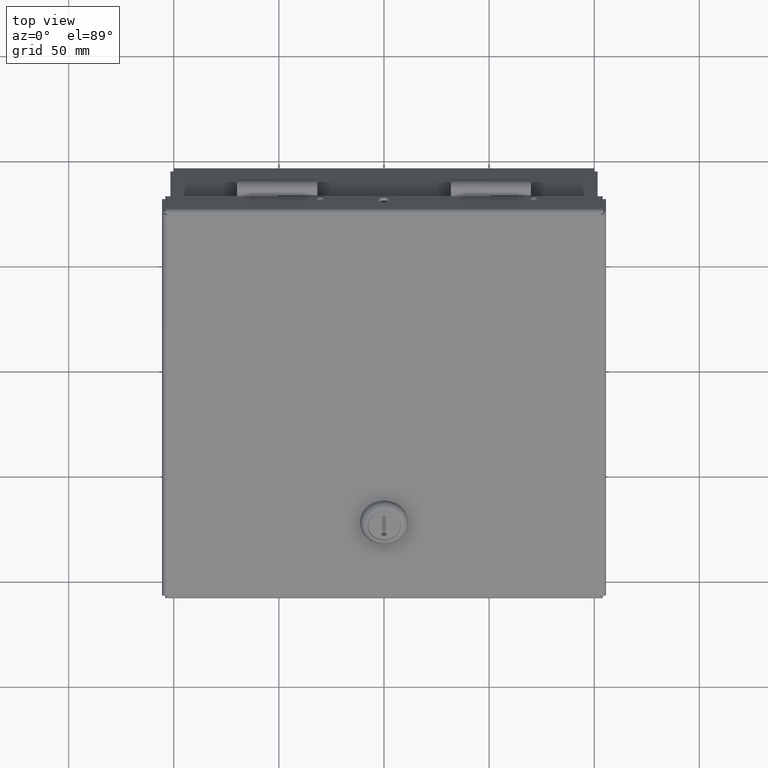
[diagram: clean part render]
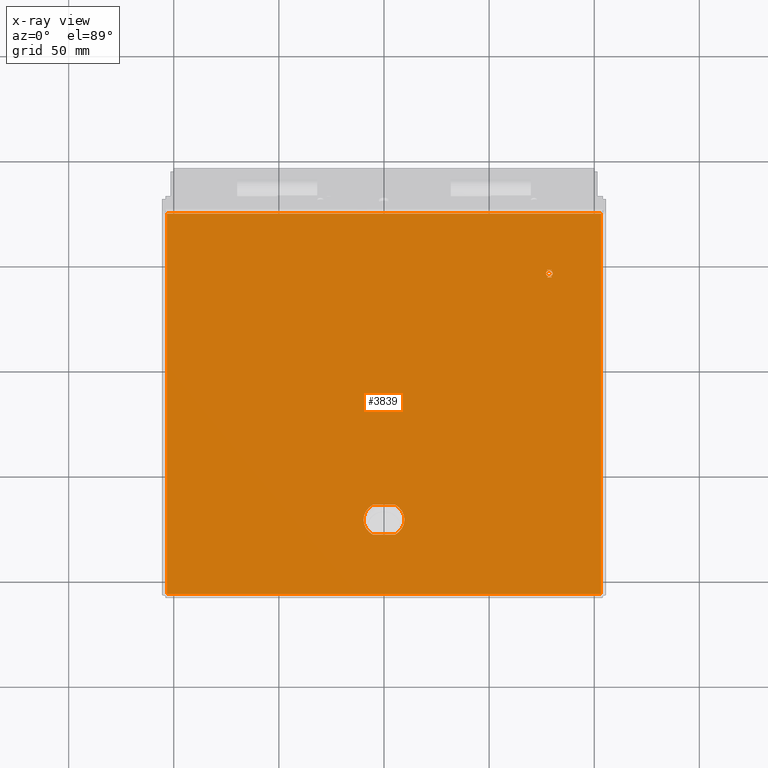
[diagram: x-ray — body ghosted, one internal face saturated and labeled with its STEP entity id]
A machine part, top view, then the same camera in x-ray: the body is ghosted and one INTERNAL B-rep face — a face not visible from any outside direction — is saturated and labeled: STEP entity #3839.
In plain terms, the highlighted planar face has unit normal (0, -0.5, 0.866).
Its self-contained STEP definition (entity closure, byte-faithful):
#3839 = ADVANCED_FACE( '', ( #8528, #8529, #8530, #8531, #8532, #8533, #8534, #8535, #8536, #8537, #8538, #8539, #8540, #8541, #8542, #8543, #8544 ), #8545, .F. );
#8528 = FACE_BOUND( '', #27988, .T. );
#8529 = FACE_BOUND( '', #27989, .T. );
#8530 = FACE_BOUND( '', #27990, .T. );
#8531 = FACE_BOUND( '', #27991, .T. );
#8532 = FACE_BOUND( '', #27992, .T. );
#8533 = FACE_BOUND( '', #27993, .T. );
#8534 = FACE_BOUND( '', #27994, .T. );
#8535 = FACE_OUTER_BOUND( '', #27995, .T. );
#8536 = FACE_BOUND( '', #27996, .T. );
#8537 = FACE_BOUND( '', #27997, .T. );
#8538 = FACE_BOUND( '', #27998, .T. );
#8539 = FACE_BOUND( '', #27999, .T. );
#8540 = FACE_BOUND( '', #28000, .T. );
#8541 = FACE_BOUND( '', #28001, .T. );
#8542 = FACE_BOUND( '', #28002, .T. );
#8543 = FACE_BOUND( '', #28003, .T. );
#8544 = FACE_BOUND( '', #28004, .T. );
#8545 = PLANE( '', #28005 );
#27988 = EDGE_LOOP( '', ( #53750, #53751, #53752, #53753 ) );
#27989 = EDGE_LOOP( '', ( #53754, #53755, #53756, #53757, #53758, #53759, #53760 ) );
#27990 = EDGE_LOOP( '', ( #53761, #53762, #53763, #53764, #53765, #53766, #53767, #53768, #53769, #53770, #53771, #53772 ) );
#27991 = EDGE_LOOP( '', ( #53773, #53774, #53775, #53776, #53777, #53778, #53779, #53780, #53781, #53782 ) );
#27992 = EDGE_LOOP( '', ( #53783, #53784, #53785, #53786 ) );
#27993 = EDGE_LOOP( '', ( #53787, #53788, #53789, #53790 ) );
#27994 = EDGE_LOOP( '', ( #53791, #53792, #53793, #53794, #53795 ) );
#27995 = EDGE_LOOP( '', ( #53796, #53797, #53798, #53799 ) );
#27996 = EDGE_LOOP( '', ( #53800, #53801, #53802, #53803 ) );
#27997 = EDGE_LOOP( '', ( #53804 ) );
#27998 = EDGE_LOOP( '', ( #53805 ) );
#27999 = EDGE_LOOP( '', ( #53806, #53807, #53808, #53809, #53810, #53811, #53812, #53813, #53814, #53815 ) );
#28000 = EDGE_LOOP( '', ( #53816 ) );
#28001 = EDGE_LOOP( '', ( #53817, #53818, #53819, #53820 ) );
#28002 = EDGE_LOOP( '', ( #53821, #53822, #53823, #53824, #53825, #53826, #53827 ) );
#28003 = EDGE_LOOP( '', ( #53828 ) );
#28004 = EDGE_LOOP( '', ( #53829, #53830, #53831, #53832, #53833, #53834, #53835 ) );
#28005 = AXIS2_PLACEMENT_3D( '', #53836, #53837, #53838 );
#53750 = ORIENTED_EDGE( '', *, *, #68161, .T. );
#53751 = ORIENTED_EDGE( '', *, *, #66723, .T. );
#53752 = ORIENTED_EDGE( '', *, *, #68162, .T. );
#53753 = ORIENTED_EDGE( '', *, *, #66114, .T. );
#53754 = ORIENTED_EDGE( '', *, *, #68163, .T. );
#53755 = ORIENTED_EDGE( '', *, *, #68164, .T. );
#53756 = ORIENTED_EDGE( '', *, *, #65647, .T. );
#53757 = ORIENTED_EDGE( '', *, *, #68165, .T. );
#53758 = ORIENTED_EDGE( '', *, *, #68166, .T. );
#53759 = ORIENTED_EDGE( '', *, *, #68001, .T. );
#53760 = ORIENTED_EDGE( '', *, *, #65595, .T. );
#53761 = ORIENTED_EDGE( '', *, *, #68167, .T. );
#53762 = ORIENTED_EDGE( '', *, *, #66895, .T. );
#53763 = ORIENTED_EDGE( '', *, *, #68168, .T. );
#53764 = ORIENTED_EDGE( '', *, *, #66426, .T. );
#53765 = ORIENTED_EDGE( '', *, *, #68169, .T. );
#53766 = ORIENTED_EDGE( '', *, *, #68170, .T. );
#53767 = ORIENTED_EDGE( '', *, *, #66838, .T. );
#53768 = ORIENTED_EDGE( '', *, *, #68171, .T. );
#53769 = ORIENTED_EDGE( '', *, *, #68172, .T. );
#53770 = ORIENTED_EDGE( '', *, *, #68173, .T. );
#53771 = ORIENTED_EDGE( '', *, *, #66096, .T. );
#53772 = ORIENTED_EDGE( '', *, *, #67398, .T. );
#53773 = ORIENTED_EDGE( '', *, *, #68174, .T. );
#53774 = ORIENTED_EDGE( '', *, *, #68175, .T. );
#53775 = ORIENTED_EDGE( '', *, *, #66622, .T. );
#53776 = ORIENTED_EDGE( '', *, *, #68176, .T. );
#53777 = ORIENTED_EDGE( '', *, *, #68177, .T. );
#53778 = ORIENTED_EDGE( '', *, *, #66366, .T. );
#53779 = ORIENTED_EDGE( '', *, *, #65764, .T. );
#53780 = ORIENTED_EDGE( '', *, *, #68178, .T. );
#53781 = ORIENTED_EDGE( '', *, *, #67495, .T. );
#53782 = ORIENTED_EDGE( '', *, *, #68179, .T. );
#53783 = ORIENTED_EDGE( '', *, *, #68180, .T. );
#53784 = ORIENTED_EDGE( '', *, *, #66902, .T. );
#53785 = ORIENTED_EDGE( '', *, *, #68181, .T. );
#53786 = ORIENTED_EDGE( '', *, *, #68182, .T. );
#53787 = ORIENTED_EDGE( '', *, *, #67108, .T. );
#53788 = ORIENTED_EDGE( '', *, *, #68183, .T. );
#53789 = ORIENTED_EDGE( '', *, *, #68184, .T. );
#53790 = ORIENTED_EDGE( '', *, *, #68185, .T. );
#53791 = ORIENTED_EDGE( '', *, *, #66342, .T. );
#53792 = ORIENTED_EDGE( '', *, *, #68186, .T. );
#53793 = ORIENTED_EDGE( '', *, *, #68187, .T. );
#53794 = ORIENTED_EDGE( '', *, *, #68188, .T. );
#53795 = ORIENTED_EDGE( '', *, *, #68189, .T. );
#53796 = ORIENTED_EDGE( '', *, *, #66826, .T. );
#53797 = ORIENTED_EDGE( '', *, *, #65434, .F. );
#53798 = ORIENTED_EDGE( '', *, *, #68190, .F. );
#53799 = ORIENTED_EDGE( '', *, *, #68191, .F. );
#53800 = ORIENTED_EDGE( '', *, *, #66545, .T. );
#53801 = ORIENTED_EDGE( '', *, *, #67451, .T. );
#53802 = ORIENTED_EDGE( '', *, *, #68192, .T. );
#53803 = ORIENTED_EDGE( '', *, *, #68193, .T. );
#53804 = ORIENTED_EDGE( '', *, *, #68194, .T. );
#53805 = ORIENTED_EDGE( '', *, *, #68195, .T. );
#53806 = ORIENTED_EDGE( '', *, *, #67009, .T. );
#53807 = ORIENTED_EDGE( '', *, *, #65071, .T. );
#53808 = ORIENTED_EDGE( '', *, *, #67434, .T. );
#53809 = ORIENTED_EDGE( '', *, *, #68196, .T. );
#53810 = ORIENTED_EDGE( '', *, *, #68197, .T. );
#53811 = ORIENTED_EDGE( '', *, *, #68198, .T. );
#53812 = ORIENTED_EDGE( '', *, *, #64731, .T. );
#53813 = ORIENTED_EDGE( '', *, *, #68199, .T. );
#53814 = ORIENTED_EDGE( '', *, *, #66796, .T. );
#53815 = ORIENTED_EDGE( '', *, *, #68200, .T. );
#53816 = ORIENTED_EDGE( '', *, *, #66620, .T. );
#53817 = ORIENTED_EDGE( '', *, *, #68201, .T. );
#53818 = ORIENTED_EDGE( '', *, *, #67045, .T. );
#53819 = ORIENTED_EDGE( '', *, *, #68202, .T. );
#53820 = ORIENTED_EDGE( '', *, *, #68203, .T. );
#53821 = ORIENTED_EDGE( '', *, *, #67520, .T. );
#53822 = ORIENTED_EDGE( '', *, *, #66960, .T. );
#53823 = ORIENTED_EDGE( '', *, *, #68204, .T. );
#53824 = ORIENTED_EDGE( '', *, *, #68205, .T. );
#53825 = ORIENTED_EDGE( '', *, *, #68206, .T. );
#53826 = ORIENTED_EDGE( '', *, *, #68207, .T. );
#53827 = ORIENTED_EDGE( '', *, *, #67484, .T. );
#53828 = ORIENTED_EDGE( '', *, *, #65574, .T. );
#53829 = ORIENTED_EDGE( '', *, *, #68208, .T. );
#53830 = ORIENTED_EDGE( '', *, *, #66768, .T. );
#53831 = ORIENTED_EDGE( '', *, *, #68209, .T. );
#53832 = ORIENTED_EDGE( '', *, *, #67194, .T. );
#53833 = ORIENTED_EDGE( '', *, *, #68210, .T. );
#53834 = ORIENTED_EDGE( '', *, *, #68211, .T. );
#53835 = ORIENTED_EDGE( '', *, *, #68212, .T. );
#53836 = CARTESIAN_POINT( '', ( 0.000000000000000, 0.000000000000000, 0.000000000000000 ) );
#53837 = DIRECTION( '', ( 0.000000000000000, 0.000000000000000, 1.00000000000000 ) );
#53838 = DIRECTION( '', ( 1.00000000000000, 0.000000000000000, 0.000000000000000 ) );
#64731 = EDGE_CURVE( '', #70652, #70653, #70654, .T. );
#65071 = EDGE_CURVE( '', #71255, #71256, #71257, .T. );
#65434 = EDGE_CURVE( '', #71938, #71935, #71940, .T. );
#65574 = EDGE_CURVE( '', #72181, #72181, #72182, .T. );
#65595 = EDGE_CURVE( '', #72219, #72220, #72221, .T. );
#65647 = EDGE_CURVE( '', #72308, #72309, #72310, .T. );
#65764 = EDGE_CURVE( '', #72508, #72509, #72510, .T. );
#66096 = EDGE_CURVE( '', #73059, #73060, #73061, .T. );
#66114 = EDGE_CURVE( '', #73088, #73089, #73090, .T. );
#66342 = EDGE_CURVE( '', #73449, #73450, #73451, .T. );
#66366 = EDGE_CURVE( '', #73487, #72508, #73488, .T. );
#66426 = EDGE_CURVE( '', #73584, #73585, #73586, .T. );
#66545 = EDGE_CURVE( '', #73763, #73768, #73770, .T. );
#66620 = EDGE_CURVE( '', #73889, #73889, #73890, .T. );
#66622 = EDGE_CURVE( '', #73892, #73893, #73894, .T. );
#66723 = EDGE_CURVE( '', #74053, #74054, #74055, .T. );
#66768 = EDGE_CURVE( '', #74122, #74123, #74124, .T. );
#66796 = EDGE_CURVE( '', #74165, #74166, #74167, .T. );
#66826 = EDGE_CURVE( '', #73980, #71935, #74212, .T. );
#66838 = EDGE_CURVE( '', #74228, #74229, #74230, .T. );
#66895 = EDGE_CURVE( '', #74322, #74323, #74324, .T. );
#66902 = EDGE_CURVE( '', #74334, #74335, #74336, .T. );
#66960 = EDGE_CURVE( '', #74427, #74428, #74429, .T. );
#67009 = EDGE_CURVE( '', #74510, #71255, #74511, .T. );
#67045 = EDGE_CURVE( '', #74563, #74564, #74565, .T. );
#67108 = EDGE_CURVE( '', #74659, #74660, #74661, .T. );
#67194 = EDGE_CURVE( '', #74791, #74792, #74793, .T. );
#67398 = EDGE_CURVE( '', #73060, #75090, #75091, .T. );
#67434 = EDGE_CURVE( '', #71256, #75143, #75144, .T. );
#67451 = EDGE_CURVE( '', #73768, #75164, #75166, .T. );
#67484 = EDGE_CURVE( '', #75214, #75215, #75216, .T. );
#67495 = EDGE_CURVE( '', #75232, #75233, #75234, .T. );
#67520 = EDGE_CURVE( '', #75215, #74427, #75269, .T. );
#68001 = EDGE_CURVE( '', #75999, #72219, #76000, .T. );
#68161 = EDGE_CURVE( '', #73089, #74053, #76227, .T. );
#68162 = EDGE_CURVE( '', #74054, #73088, #76228, .T. );
#68163 = EDGE_CURVE( '', #72220, #76229, #76230, .T. );
#68164 = EDGE_CURVE( '', #76229, #72308, #76231, .T. );
#68165 = EDGE_CURVE( '', #72309, #76232, #76233, .T. );
#68166 = EDGE_CURVE( '', #76232, #75999, #76234, .T. );
#68167 = EDGE_CURVE( '', #75090, #74322, #76235, .T. );
#68168 = EDGE_CURVE( '', #74323, #73584, #76236, .T. );
#68169 = EDGE_CURVE( '', #73585, #76237, #76238, .T. );
#68170 = EDGE_CURVE( '', #76237, #74228, #76239, .T. );
#68171 = EDGE_CURVE( '', #74229, #76240, #76241, .T. );
#68172 = EDGE_CURVE( '', #76240, #76242, #76243, .T. );
#68173 = EDGE_CURVE( '', #76242, #73059, #76244, .T. );
#68174 = EDGE_CURVE( '', #76245, #76246, #76247, .T. );
#68175 = EDGE_CURVE( '', #76246, #73892, #76248, .T. );
#68176 = EDGE_CURVE( '', #73893, #76249, #76250, .T. );
#68177 = EDGE_CURVE( '', #76249, #73487, #76251, .T. );
#68178 = EDGE_CURVE( '', #72509, #75232, #76252, .T. );
#68179 = EDGE_CURVE( '', #75233, #76245, #76253, .T. );
#68180 = EDGE_CURVE( '', #76254, #74334, #76255, .T. );
#68181 = EDGE_CURVE( '', #74335, #76256, #76257, .T. );
#68182 = EDGE_CURVE( '', #76256, #76254, #76258, .T. );
#68183 = EDGE_CURVE( '', #74660, #76259, #76260, .T. );
#68184 = EDGE_CURVE( '', #76259, #76261, #76262, .T. );
#68185 = EDGE_CURVE( '', #76261, #74659, #76263, .T. );
#68186 = EDGE_CURVE( '', #73450, #76264, #76265, .T. );
#68187 = EDGE_CURVE( '', #76264, #76266, #76267, .T. );
#68188 = EDGE_CURVE( '', #76266, #76268, #76269, .T. );
#68189 = EDGE_CURVE( '', #76268, #73449, #76270, .T. );
#68190 = EDGE_CURVE( '', #74552, #71938, #76271, .F. );
#68191 = EDGE_CURVE( '', #73980, #74552, #76272, .F. );
#68192 = EDGE_CURVE( '', #75164, #76273, #76274, .T. );
#68193 = EDGE_CURVE( '', #76273, #73763, #76275, .T. );
#68194 = EDGE_CURVE( '', #76276, #76276, #76277, .T. );
#68195 = EDGE_CURVE( '', #76278, #76278, #76279, .T. );
#68196 = EDGE_CURVE( '', #75143, #76280, #76281, .T. );
#68197 = EDGE_CURVE( '', #76280, #76282, #76283, .T. );
#68198 = EDGE_CURVE( '', #76282, #70652, #76284, .T. );
#68199 = EDGE_CURVE( '', #70653, #74165, #76285, .T. );
#68200 = EDGE_CURVE( '', #74166, #74510, #76286, .T. );
#68201 = EDGE_CURVE( '', #76287, #74563, #76288, .T. );
#68202 = EDGE_CURVE( '', #74564, #76289, #76290, .T. );
#68203 = EDGE_CURVE( '', #76289, #76287, #76291, .T. );
#68204 = EDGE_CURVE( '', #74428, #76292, #76293, .T. );
#68205 = EDGE_CURVE( '', #76292, #76294, #76295, .T. );
#68206 = EDGE_CURVE( '', #76294, #76296, #76297, .T. );
#68207 = EDGE_CURVE( '', #76296, #75214, #76298, .T. );
#68208 = EDGE_CURVE( '', #76299, #74122, #76300, .T. );
#68209 = EDGE_CURVE( '', #74123, #74791, #76301, .T. );
#68210 = EDGE_CURVE( '', #74792, #76302, #76303, .T. );
#68211 = EDGE_CURVE( '', #76302, #76304, #76305, .T. );
#68212 = EDGE_CURVE( '', #76304, #76299, #76306, .T. );
#70652 = VERTEX_POINT( '', #79453 );
#70653 = VERTEX_POINT( '', #79454 );
#70654 = B_SPLINE_CURVE_WITH_KNOTS( '', 1, ( #79455, #79456 ), .UNSPECIFIED., .F., .F., ( 2, 2 ), ( 0.500176987825552, 0.510595000266919 ), .UNSPECIFIED. );
#71255 = VERTEX_POINT( '', #81037 );
#71256 = VERTEX_POINT( '', #81038 );
#71257 = B_SPLINE_CURVE_WITH_KNOTS( '', 1, ( #81039, #81040 ), .UNSPECIFIED., .F., .F., ( 2, 2 ), ( 0.000000000000000, 0.0106956746760139 ), .UNSPECIFIED. );
#71935 = VERTEX_POINT( '', #83632 );
#71938 = VERTEX_POINT( '', #83645 );
#71940 = LINE( '', #83656, #83657 );
#72181 = VERTEX_POINT( '', #84321 );
#72182 = B_SPLINE_CURVE_WITH_KNOTS( '', 3, ( #84322, #84323, #84324, #84325, #84326, #84327, #84328, #84329, #84330, #84331, #84332, #84333, #84334, #84335, #84336, #84337, #84338, #84339, #84340, #84341, #84342, #84343, #84344, #84345, #84346, #84347, #84348, #84349, #84350 ), .UNSPECIFIED., .T., .F., ( 4, 3, 2, 3, 3, 3, 3, 2, 3, 3, 4 ), ( 0.000000000000000, 0.0642631913376253, 0.129569912309800, 0.194028494048571, 0.259063982903967, 0.499166370309846, 0.566851455277225, 0.632726612661011, 0.695348675853005, 0.759353781624414, 1.00000000000000 ), .UNSPECIFIED. );
#72219 = VERTEX_POINT( '', #84427 );
#72220 = VERTEX_POINT( '', #84428 );
#72221 = B_SPLINE_CURVE_WITH_KNOTS( '', 3, ( #84429, #84430, #84431, #84432 ), .UNSPECIFIED., .F., .F., ( 4, 4 ), ( 0.687016663234753, 0.706340563334003 ), .UNSPECIFIED. );
#72308 = VERTEX_POINT( '', #84634 );
#72309 = VERTEX_POINT( '', #84635 );
#72310 = B_SPLINE_CURVE_WITH_KNOTS( '', 3, ( #84636, #84637, #84638, #84639 ), .UNSPECIFIED., .F., .F., ( 4, 4 ), ( 0.170079808752659, 0.185983081917173 ), .UNSPECIFIED. );
#72508 = VERTEX_POINT( '', #85193 );
#72509 = VERTEX_POINT( '', #85194 );
#72510 = B_SPLINE_CURVE_WITH_KNOTS( '', 1, ( #85195, #85196 ), .UNSPECIFIED., .F., .F., ( 2, 2 ), ( 0.500219878757975, 0.510635853863330 ), .UNSPECIFIED. );
#73059 = VERTEX_POINT( '', #86735 );
#73060 = VERTEX_POINT( '', #86736 );
#73061 = B_SPLINE_CURVE_WITH_KNOTS( '', 1, ( #86737, #86738 ), .UNSPECIFIED., .F., .F., ( 2, 2 ), ( 0.782465007776050, 0.894828926905132 ), .UNSPECIFIED. );
#73088 = VERTEX_POINT( '', #86824 );
#73089 = VERTEX_POINT( '', #86825 );
#73090 = B_SPLINE_CURVE_WITH_KNOTS( '', 3, ( #86826, #86827, #86828, #86829, #86830, #86831, #86832, #86833, #86834, #86835, #86836, #86837, #86838, #86839, #86840, #86841, #86842, #86843 ), .UNSPECIFIED., .F., .F., ( 4, 3, 3, 2, 3, 3, 4 ), ( 0.525939617926880, 0.702308187509153, 0.731117891576601, 0.755051860493071, 0.779484453761969, 0.807147886641210, 0.983841476081156 ), .UNSPECIFIED. );
#73449 = VERTEX_POINT( '', #87722 );
#73450 = VERTEX_POINT( '', #87723 );
#73451 = B_SPLINE_CURVE_WITH_KNOTS( '', 3, ( #87724, #87725, #87726, #87727, #87728, #87729, #87730, #87731, #87732, #87733 ), .UNSPECIFIED., .F., .F., ( 4, 3, 3, 4 ), ( 0.764871933882844, 0.848025193509984, 0.878969822923960, 1.00000000000000 ), .UNSPECIFIED. );
#73487 = VERTEX_POINT( '', #87837 );
#73488 = B_SPLINE_CURVE_WITH_KNOTS( '', 1, ( #87838, #87839 ), .UNSPECIFIED., .F., .F., ( 2, 2 ), ( 0.317725441866798, 0.500219878757975 ), .UNSPECIFIED. );
#73584 = VERTEX_POINT( '', #88280 );
#73585 = VERTEX_POINT( '', #88281 );
#73586 = B_SPLINE_CURVE_WITH_KNOTS( '', 1, ( #88282, #88283 ), .UNSPECIFIED., .F., .F., ( 2, 2 ), ( 0.357309486780715, 0.463646967340591 ), .UNSPECIFIED. );
#73763 = VERTEX_POINT( '', #88866 );
#73768 = VERTEX_POINT( '', #88873 );
#73770 = LINE( '', #88876, #88877 );
#73889 = VERTEX_POINT( '', #89258 );
#73890 = B_SPLINE_CURVE_WITH_KNOTS( '', 3, ( #89259, #89260, #89261, #89262, #89263, #89264, #89265, #89266, #89267, #89268, #89269, #89270, #89271, #89272, #89273, #89274, #89275, #89276, #89277, #89278, #89279, #89280, #89281, #89282, #89283, #89284, #89285, #89286, #89287 ), .UNSPECIFIED., .T., .F., ( 4, 3, 2, 3, 3, 3, 3, 2, 3, 3, 4 ), ( 0.000000000000000, 0.0641681965463350, 0.128705719660391, 0.194092420710158, 0.259262985961382, 0.499070427492245, 0.566916327919302, 0.633243013505071, 0.695475459239869, 0.759609111931601, 1.00000000000000 ), .UNSPECIFIED. );
#73892 = VERTEX_POINT( '', #89289 );
#73893 = VERTEX_POINT( '', #89290 );
#73894 = B_SPLINE_CURVE_WITH_KNOTS( '', 1, ( #89291, #89292 ), .UNSPECIFIED., .F., .F., ( 2, 2 ), ( 0.0106935830406550, 0.163653423057361 ), .UNSPECIFIED. );
#73980 = VERTEX_POINT( '', #89481 );
#74053 = VERTEX_POINT( '', #89704 );
#74054 = VERTEX_POINT( '', #89705 );
#74055 = B_SPLINE_CURVE_WITH_KNOTS( '', 3, ( #89706, #89707, #89708, #89709, #89710, #89711, #89712, #89713, #89714, #89715, #89716, #89717, #89718, #89719, #89720, #89721, #89722, #89723 ), .UNSPECIFIED., .F., .F., ( 4, 3, 3, 2, 3, 3, 4 ), ( 0.000000000000000, 0.177228065535403, 0.216047535441659, 0.255500148304700, 0.292200253293577, 0.333107798581499, 0.509952993198662 ), .UNSPECIFIED. );
#74122 = VERTEX_POINT( '', #89881 );
#74123 = VERTEX_POINT( '', #89882 );
#74124 = B_SPLINE_CURVE_WITH_KNOTS( '', 3, ( #89883, #89884, #89885, #89886, #89887, #89888, #89889, #89890, #89891, #89892, #89893, #89894 ), .UNSPECIFIED., .F., .F., ( 4, 3, 2, 3, 4 ), ( 0.000000000000000, 0.0531521605438596, 0.105119570083058, 0.143157570879792, 0.170075307769813 ), .UNSPECIFIED. );
#74165 = VERTEX_POINT( '', #90019 );
#74166 = VERTEX_POINT( '', #90020 );
#74167 = B_SPLINE_CURVE_WITH_KNOTS( '', 1, ( #90021, #90022 ), .UNSPECIFIED., .F., .F., ( 2, 2 ), ( 0.663086247705562, 0.803818809232061 ), .UNSPECIFIED. );
#74212 = LINE( '', #90099, #90100 );
#74228 = VERTEX_POINT( '', #90121 );
#74229 = VERTEX_POINT( '', #90122 );
#74230 = B_SPLINE_CURVE_WITH_KNOTS( '', 1, ( #90123, #90124 ), .UNSPECIFIED., .F., .F., ( 2, 2 ), ( 0.569984447900466, 0.655520995334370 ), .UNSPECIFIED. );
#74322 = VERTEX_POINT( '', #90454 );
#74323 = VERTEX_POINT( '', #90455 );
#74324 = B_SPLINE_CURVE_WITH_KNOTS( '', 1, ( #90456, #90457 ), .UNSPECIFIED., .F., .F., ( 2, 2 ), ( 0.000000000000000, 0.106337480559875 ), .UNSPECIFIED. );
#74334 = VERTEX_POINT( '', #90498 );
#74335 = VERTEX_POINT( '', #90499 );
#74336 = B_SPLINE_CURVE_WITH_KNOTS( '', 3, ( #90500, #90501, #90502, #90503, #90504, #90505, #90506, #90507, #90508, #90509, #90510, #90511, #90512, #90513, #90514, #90515, #90516, #90517, #90518, #90519, #90520, #90521, #90522, #90523, #90524 ), .UNSPECIFIED., .F., .F., ( 4, 3, 3, 3, 3, 3, 3, 3, 4 ), ( 0.000000000000000, 0.0861082027795404, 0.114023795971760, 0.141958976736338, 0.370140796327457, 0.401388608217310, 0.414729711320318, 0.438810142627804, 0.514736512253717 ), .UNSPECIFIED. );
#74427 = VERTEX_POINT( '', #90780 );
#74428 = VERTEX_POINT( '', #90781 );
#74429 = B_SPLINE_CURVE_WITH_KNOTS( '', 3, ( #90782, #90783, #90784, #90785, #90786, #90787, #90788, #90789, #90790, #90791, #90792, #90793 ), .UNSPECIFIED., .F., .F., ( 4, 3, 2, 3, 4 ), ( 0.000000000000000, 0.0531578673702267, 0.105126144912357, 0.143164781051442, 0.170079808752659 ), .UNSPECIFIED. );
#74510 = VERTEX_POINT( '', #90987 );
#74511 = B_SPLINE_CURVE_WITH_KNOTS( '', 1, ( #90988, #90989 ), .UNSPECIFIED., .F., .F., ( 2, 2 ), ( 0.817469867700131, 1.00000000000000 ), .UNSPECIFIED. );
#74552 = VERTEX_POINT( '', #91109 );
#74563 = VERTEX_POINT( '', #91140 );
#74564 = VERTEX_POINT( '', #91141 );
#74565 = B_SPLINE_CURVE_WITH_KNOTS( '', 3, ( #91142, #91143, #91144, #91145, #91146, #91147, #91148, #91149, #91150, #91151 ), .UNSPECIFIED., .F., .F., ( 4, 3, 3, 4 ), ( 0.000000000000000, 0.0306008641385628, 0.0614933481538985, 0.180579355006403 ), .UNSPECIFIED. );
#74659 = VERTEX_POINT( '', #91511 );
#74660 = VERTEX_POINT( '', #91512 );
#74661 = B_SPLINE_CURVE_WITH_KNOTS( '', 1, ( #91513, #91514 ), .UNSPECIFIED., .F., .F., ( 2, 2 ), ( 0.533935018050542, 1.00000000000000 ), .UNSPECIFIED. );
#74791 = VERTEX_POINT( '', #91996 );
#74792 = VERTEX_POINT( '', #91997 );
#74793 = B_SPLINE_CURVE_WITH_KNOTS( '', 3, ( #91998, #91999, #92000, #92001 ), .UNSPECIFIED., .F., .F., ( 4, 4 ), ( 0.186040537027912, 0.204323554761031 ), .UNSPECIFIED. );
#75090 = VERTEX_POINT( '', #92823 );
#75091 = B_SPLINE_CURVE_WITH_KNOTS( '', 1, ( #92824, #92825 ), .UNSPECIFIED., .F., .F., ( 2, 2 ), ( 0.894828926905132, 0.982892690513219 ), .UNSPECIFIED. );
#75143 = VERTEX_POINT( '', #92979 );
#75144 = B_SPLINE_CURVE_WITH_KNOTS( '', 1, ( #92980, #92981 ), .UNSPECIFIED., .F., .F., ( 2, 2 ), ( 0.0106956746760139, 0.163685433215693 ), .UNSPECIFIED. );
#75164 = VERTEX_POINT( '', #93009 );
#75166 = CIRCLE( '', #93012, 9.71550000000000 );
#75214 = VERTEX_POINT( '', #93116 );
#75215 = VERTEX_POINT( '', #93117 );
#75216 = B_SPLINE_CURVE_WITH_KNOTS( '', 3, ( #93118, #93119, #93120, #93121 ), .UNSPECIFIED., .F., .F., ( 4, 4 ), ( 0.687016663234753, 0.706340563334003 ), .UNSPECIFIED. );
#75232 = VERTEX_POINT( '', #93170 );
#75233 = VERTEX_POINT( '', #93171 );
#75234 = B_SPLINE_CURVE_WITH_KNOTS( '', 1, ( #93172, #93173 ), .UNSPECIFIED., .F., .F., ( 2, 2 ), ( 0.663152134219368, 0.803857174227986 ), .UNSPECIFIED. );
#75269 = B_SPLINE_CURVE_WITH_KNOTS( '', 3, ( #93238, #93239, #93240, #93241, #93242, #93243, #93244, #93245, #93246, #93247, #93248, #93249, #93250, #93251, #93252, #93253, #93254 ), .UNSPECIFIED., .F., .F., ( 4, 2, 3, 2, 3, 3, 4 ), ( 0.706340563334003, 0.759058428466538, 0.790486386526318, 0.835546690303783, 0.875600293661529, 0.942629837825041, 1.00000000000000 ), .UNSPECIFIED. );
#75999 = VERTEX_POINT( '', #95494 );
#76000 = B_SPLINE_CURVE_WITH_KNOTS( '', 3, ( #95495, #95496, #95497, #95498 ), .UNSPECIFIED., .F., .F., ( 4, 4 ), ( 0.674568692339545, 0.687016663234753 ), .UNSPECIFIED. );
#76227 = B_SPLINE_CURVE_WITH_KNOTS( '', 3, ( #96051, #96052, #96053, #96054 ), .UNSPECIFIED., .F., .F., ( 4, 4 ), ( 0.983841476081156, 1.00000000000000 ), .UNSPECIFIED. );
#76228 = B_SPLINE_CURVE_WITH_KNOTS( '', 3, ( #96055, #96056, #96057, #96058 ), .UNSPECIFIED., .F., .F., ( 4, 4 ), ( 0.509952993198662, 0.525939617926880 ), .UNSPECIFIED. );
#76229 = VERTEX_POINT( '', #96059 );
#76230 = B_SPLINE_CURVE_WITH_KNOTS( '', 3, ( #96060, #96061, #96062, #96063, #96064, #96065, #96066, #96067, #96068, #96069, #96070, #96071, #96072, #96073, #96074, #96075, #96076 ), .UNSPECIFIED., .F., .F., ( 4, 2, 3, 2, 3, 3, 4 ), ( 0.706340563334003, 0.759058428466538, 0.790486386526319, 0.835546690303783, 0.875600293661529, 0.942629837825041, 1.00000000000000 ), .UNSPECIFIED. );
#76231 = B_SPLINE_CURVE_WITH_KNOTS( '', 3, ( #96077, #96078, #96079, #96080, #96081, #96082, #96083, #96084, #96085, #96086, #96087, #96088 ), .UNSPECIFIED., .F., .F., ( 4, 3, 2, 3, 4 ), ( 0.000000000000000, 0.0531578673702267, 0.105126144912357, 0.143164781051442, 0.170079808752659 ), .UNSPECIFIED. );
#76232 = VERTEX_POINT( '', #96089 );
#76233 = B_SPLINE_CURVE_WITH_KNOTS( '', 3, ( #96090, #96091, #96092, #96093 ), .UNSPECIFIED., .F., .F., ( 4, 4 ), ( 0.185983081917173, 0.204268062656248 ), .UNSPECIFIED. );
#76234 = B_SPLINE_CURVE_WITH_KNOTS( '', 3, ( #96094, #96095, #96096, #96097, #96098, #96099, #96100, #96101, #96102, #96103, #96104, #96105, #96106, #96107, #96108, #96109, #96110, #96111, #96112, #96113, #96114, #96115, #96116, #96117, #96118, #96119, #96120 ), .UNSPECIFIED., .F., .F., ( 4, 3, 2, 3, 2, 3, 3, 2, 3, 2, 4 ), ( 0.204268062656248, 0.227374736335408, 0.257043770594305, 0.293430322043896, 0.338608402567472, 0.384470999462619, 0.450763731631533, 0.498904653697955, 0.557048884245711, 0.605125169375007, 0.674568692339545 ), .UNSPECIFIED. );
#76235 = B_SPLINE_CURVE_WITH_KNOTS( '', 1, ( #96121, #96122 ), .UNSPECIFIED., .F., .F., ( 2, 2 ), ( 0.982892690513219, 1.00000000000000 ), .UNSPECIFIED. );
#76236 = B_SPLINE_CURVE_WITH_KNOTS( '', 1, ( #96123, #96124 ), .UNSPECIFIED., .F., .F., ( 2, 2 ), ( 0.106337480559875, 0.357309486780715 ), .UNSPECIFIED. );
#76237 = VERTEX_POINT( '', #96125 );
#76238 = B_SPLINE_CURVE_WITH_KNOTS( '', 1, ( #96126, #96127 ), .UNSPECIFIED., .F., .F., ( 2, 2 ), ( 0.463646967340591, 0.481920684292379 ), .UNSPECIFIED. );
#76239 = B_SPLINE_CURVE_WITH_KNOTS( '', 1, ( #96128, #96129 ), .UNSPECIFIED., .F., .F., ( 2, 2 ), ( 0.481920684292379, 0.569984447900466 ), .UNSPECIFIED. );
#76240 = VERTEX_POINT( '', #96130 );
#76241 = B_SPLINE_CURVE_WITH_KNOTS( '', 1, ( #96131, #96132 ), .UNSPECIFIED., .F., .F., ( 2, 2 ), ( 0.655520995334370, 0.710147744945567 ), .UNSPECIFIED. );
#76242 = VERTEX_POINT( '', #96133 );
#76243 = B_SPLINE_CURVE_WITH_KNOTS( '', 1, ( #96134, #96135 ), .UNSPECIFIED., .F., .F., ( 2, 2 ), ( 0.710147744945567, 0.727838258164852 ), .UNSPECIFIED. );
#76244 = B_SPLINE_CURVE_WITH_KNOTS( '', 1, ( #96136, #96137 ), .UNSPECIFIED., .F., .F., ( 2, 2 ), ( 0.727838258164852, 0.782465007776050 ), .UNSPECIFIED. );
#76245 = VERTEX_POINT( '', #96138 );
#76246 = VERTEX_POINT( '', #96139 );
#76247 = B_SPLINE_CURVE_WITH_KNOTS( '', 1, ( #96140, #96141 ), .UNSPECIFIED., .F., .F., ( 2, 2 ), ( 0.817505563108822, 1.00000000000000 ), .UNSPECIFIED. );
#76248 = B_SPLINE_CURVE_WITH_KNOTS( '', 1, ( #96142, #96143 ), .UNSPECIFIED., .F., .F., ( 2, 2 ), ( 0.000000000000000, 0.0106935830406550 ), .UNSPECIFIED. );
#76249 = VERTEX_POINT( '', #96144 );
#76250 = B_SPLINE_CURVE_WITH_KNOTS( '', 1, ( #96145, #96146 ), .UNSPECIFIED., .F., .F., ( 2, 2 ), ( 0.163653423057361, 0.304499168105987 ), .UNSPECIFIED. );
#76251 = B_SPLINE_CURVE_WITH_KNOTS( '', 1, ( #96147, #96148 ), .UNSPECIFIED., .F., .F., ( 2, 2 ), ( 0.304499168105987, 0.317725441866798 ), .UNSPECIFIED. );
#76252 = B_SPLINE_CURVE_WITH_KNOTS( '', 1, ( #96149, #96150 ), .UNSPECIFIED., .F., .F., ( 2, 2 ), ( 0.510635853863330, 0.663152134219368 ), .UNSPECIFIED. );
#76253 = B_SPLINE_CURVE_WITH_KNOTS( '', 1, ( #96151, #96152 ), .UNSPECIFIED., .F., .F., ( 2, 2 ), ( 0.803857174227986, 0.817505563108822 ), .UNSPECIFIED. );
#76254 = VERTEX_POINT( '', #96153 );
#76255 = B_SPLINE_CURVE_WITH_KNOTS( '', 3, ( #96154, #96155, #96156, #96157 ), .UNSPECIFIED., .F., .F., ( 4, 4 ), ( 0.979167370295272, 1.00000000000000 ), .UNSPECIFIED. );
#76256 = VERTEX_POINT( '', #96158 );
#76257 = B_SPLINE_CURVE_WITH_KNOTS( '', 3, ( #96159, #96160, #96161, #96162 ), .UNSPECIFIED., .F., .F., ( 4, 4 ), ( 0.514736512253717, 0.536495036611988 ), .UNSPECIFIED. );
#76258 = B_SPLINE_CURVE_WITH_KNOTS( '', 3, ( #96163, #96164, #96165, #96166, #96167, #96168, #96169, #96170, #96171, #96172, #96173, #96174, #96175, #96176, #96177, #96178 ), .UNSPECIFIED., .F., .F., ( 4, 3, 3, 3, 3, 4 ), ( 0.536495036611988, 0.612186924539165, 0.651853264623388, 0.868744087215940, 0.902549587714552, 0.979167370295272 ), .UNSPECIFIED. );
#76259 = VERTEX_POINT( '', #96179 );
#76260 = B_SPLINE_CURVE_WITH_KNOTS( '', 1, ( #96180, #96181 ), .UNSPECIFIED., .F., .F., ( 2, 2 ), ( 0.000000000000000, 0.0339350180505415 ), .UNSPECIFIED. );
#76261 = VERTEX_POINT( '', #96182 );
#76262 = B_SPLINE_CURVE_WITH_KNOTS( '', 1, ( #96183, #96184 ), .UNSPECIFIED., .F., .F., ( 2, 2 ), ( 0.0339350180505415, 0.500000000000000 ), .UNSPECIFIED. );
#76263 = B_SPLINE_CURVE_WITH_KNOTS( '', 1, ( #96185, #96186 ), .UNSPECIFIED., .F., .F., ( 2, 2 ), ( 0.500000000000000, 0.533935018050542 ), .UNSPECIFIED. );
#76264 = VERTEX_POINT( '', #96187 );
#76265 = B_SPLINE_CURVE_WITH_KNOTS( '', 3, ( #96188, #96189, #96190, #96191, #96192, #96193, #96194, #96195, #96196, #96197 ), .UNSPECIFIED., .F., .F., ( 4, 3, 3, 4 ), ( 0.000000000000000, 0.0866997690994549, 0.151008712242245, 0.208624872895838 ), .UNSPECIFIED. );
#76266 = VERTEX_POINT( '', #96198 );
#76267 = B_SPLINE_CURVE_WITH_KNOTS( '', 3, ( #96199, #96200, #96201, #96202 ), .UNSPECIFIED., .F., .F., ( 4, 4 ), ( 0.208624872895838, 0.370106800294617 ), .UNSPECIFIED. );
#76268 = VERTEX_POINT( '', #96203 );
#76269 = B_SPLINE_CURVE_WITH_KNOTS( '', 3, ( #96204, #96205, #96206, #96207 ), .UNSPECIFIED., .F., .F., ( 4, 4 ), ( 0.370106800294617, 0.396783955260320 ), .UNSPECIFIED. );
#76270 = B_SPLINE_CURVE_WITH_KNOTS( '', 3, ( #96208, #96209, #96210, #96211 ), .UNSPECIFIED., .F., .F., ( 4, 4 ), ( 0.396783955260320, 0.764871933882844 ), .UNSPECIFIED. );
#76271 = LINE( '', #96212, #96213 );
#76272 = LINE( '', #96214, #96215 );
#76273 = VERTEX_POINT( '', #96216 );
#76274 = LINE( '', #96217, #96218 );
#76275 = CIRCLE( '', #96219, 9.71550000000000 );
#76276 = VERTEX_POINT( '', #96220 );
#76277 = CIRCLE( '', #96221, 1.58750000000000 );
#76278 = VERTEX_POINT( '', #96222 );
#76279 = B_SPLINE_CURVE_WITH_KNOTS( '', 3, ( #96223, #96224, #96225, #96226, #96227, #96228, #96229, #96230, #96231, #96232, #96233, #96234, #96235, #96236, #96237, #96238, #96239, #96240, #96241, #96242, #96243, #96244, #96245, #96246, #96247, #96248, #96249, #96250, #96251 ), .UNSPECIFIED., .T., .F., ( 4, 3, 2, 3, 3, 3, 3, 2, 3, 3, 4 ), ( 0.000000000000000, 0.0640932743862381, 0.129622015893913, 0.194299734784605, 0.259268037126023, 0.499035905405616, 0.566737119469540, 0.632366145646397, 0.695534083341622, 0.759610276198770, 1.00000000000000 ), .UNSPECIFIED. );
#76280 = VERTEX_POINT( '', #96252 );
#76281 = B_SPLINE_CURVE_WITH_KNOTS( '', 1, ( #96253, #96254 ), .UNSPECIFIED., .F., .F., ( 2, 2 ), ( 0.163685433215693, 0.304558727303718 ), .UNSPECIFIED. );
#76282 = VERTEX_POINT( '', #96255 );
#76283 = B_SPLINE_CURVE_WITH_KNOTS( '', 1, ( #96256, #96257 ), .UNSPECIFIED., .F., .F., ( 2, 2 ), ( 0.304558727303718, 0.317646855525683 ), .UNSPECIFIED. );
#76284 = B_SPLINE_CURVE_WITH_KNOTS( '', 1, ( #96258, #96259 ), .UNSPECIFIED., .F., .F., ( 2, 2 ), ( 0.317646855525683, 0.500176987825552 ), .UNSPECIFIED. );
#76285 = B_SPLINE_CURVE_WITH_KNOTS( '', 1, ( #96260, #96261 ), .UNSPECIFIED., .F., .F., ( 2, 2 ), ( 0.510595000266919, 0.663086247705562 ), .UNSPECIFIED. );
#76286 = B_SPLINE_CURVE_WITH_KNOTS( '', 1, ( #96262, #96263 ), .UNSPECIFIED., .F., .F., ( 2, 2 ), ( 0.803818809232061, 0.817469867700131 ), .UNSPECIFIED. );
#76287 = VERTEX_POINT( '', #96264 );
#76288 = B_SPLINE_CURVE_WITH_KNOTS( '', 3, ( #96265, #96266, #96267, #96268, #96269, #96270, #96271 ), .UNSPECIFIED., .F., .F., ( 4, 3, 4 ), ( 0.666026513844279, 0.725098359416604, 1.00000000000000 ), .UNSPECIFIED. );
#76289 = VERTEX_POINT( '', #96272 );
#76290 = B_SPLINE_CURVE_WITH_KNOTS( '', 3, ( #96273, #96274, #96275, #96276 ), .UNSPECIFIED., .F., .F., ( 4, 4 ), ( 0.180579355006403, 0.535706275162444 ), .UNSPECIFIED. );
#76291 = B_SPLINE_CURVE_WITH_KNOTS( '', 3, ( #96277, #96278, #96279, #96280, #96281, #96282, #96283 ), .UNSPECIFIED., .F., .F., ( 4, 3, 4 ), ( 0.535706275162444, 0.642764583397611, 0.666026513844279 ), .UNSPECIFIED. );
#76292 = VERTEX_POINT( '', #96284 );
#76293 = B_SPLINE_CURVE_WITH_KNOTS( '', 3, ( #96285, #96286, #96287, #96288 ), .UNSPECIFIED., .F., .F., ( 4, 4 ), ( 0.170079808752659, 0.185983081917173 ), .UNSPECIFIED. );
#76294 = VERTEX_POINT( '', #96289 );
#76295 = B_SPLINE_CURVE_WITH_KNOTS( '', 3, ( #96290, #96291, #96292, #96293 ), .UNSPECIFIED., .F., .F., ( 4, 4 ), ( 0.185983081917173, 0.204268062656248 ), .UNSPECIFIED. );
#76296 = VERTEX_POINT( '', #96294 );
#76297 = B_SPLINE_CURVE_WITH_KNOTS( '', 3, ( #96295, #96296, #96297, #96298, #96299, #96300, #96301, #96302, #96303, #96304, #96305, #96306, #96307, #96308, #96309, #96310, #96311, #96312, #96313, #96314, #96315, #96316, #96317, #96318, #96319, #96320, #96321 ), .UNSPECIFIED., .F., .F., ( 4, 3, 2, 3, 2, 3, 3, 2, 3, 2, 4 ), ( 0.204268062656248, 0.227374736335408, 0.257043770594305, 0.293430322043896, 0.338608402567473, 0.384470999462619, 0.450763731631533, 0.498904653697955, 0.557048884245711, 0.605125169375007, 0.674568692339545 ), .UNSPECIFIED. );
#76298 = B_SPLINE_CURVE_WITH_KNOTS( '', 3, ( #96322, #96323, #96324, #96325 ), .UNSPECIFIED., .F., .F., ( 4, 4 ), ( 0.674568692339545, 0.687016663234753 ), .UNSPECIFIED. );
#76299 = VERTEX_POINT( '', #96326 );
#76300 = B_SPLINE_CURVE_WITH_KNOTS( '', 3, ( #96327, #96328, #96329, #96330, #96331, #96332, #96333, #96334, #96335, #96336, #96337, #96338, #96339, #96340, #96341, #96342, #96343 ), .UNSPECIFIED., .F., .F., ( 4, 2, 3, 2, 3, 3, 4 ), ( 0.706269421051704, 0.759176643987553, 0.790417099435389, 0.835552354753791, 0.875672581703483, 0.942544018306904, 1.00000000000000 ), .UNSPECIFIED. );
#76301 = B_SPLINE_CURVE_WITH_KNOTS( '', 3, ( #96344, #96345, #96346, #96347 ), .UNSPECIFIED., .F., .F., ( 4, 4 ), ( 0.170075307769813, 0.186040537027912 ), .UNSPECIFIED. );
#76302 = VERTEX_POINT( '', #96348 );
#76303 = B_SPLINE_CURVE_WITH_KNOTS( '', 3, ( #96349, #96350, #96351, #96352, #96353, #96354, #96355, #96356, #96357, #96358, #96359, #96360, #96361, #96362, #96363, #96364, #96365, #96366, #96367, #96368, #96369, #96370, #96371, #96372, #96373, #96374, #96375 ), .UNSPECIFIED., .F., .F., ( 4, 3, 2, 3, 2, 3, 3, 2, 3, 2, 4 ), ( 0.204323554761031, 0.227419869699875, 0.256842076205966, 0.293481050345625, 0.338654280722386, 0.384511953983644, 0.450797569217086, 0.498863624012102, 0.556917430452837, 0.605040397084984, 0.674551348886974 ), .UNSPECIFIED. );
#76304 = VERTEX_POINT( '', #96376 );
#76305 = B_SPLINE_CURVE_WITH_KNOTS( '', 3, ( #96377, #96378, #96379, #96380 ), .UNSPECIFIED., .F., .F., ( 4, 4 ), ( 0.674551348886974, 0.686947595492838 ), .UNSPECIFIED. );
#76306 = B_SPLINE_CURVE_WITH_KNOTS( '', 3, ( #96381, #96382, #96383, #96384 ), .UNSPECIFIED., .F., .F., ( 4, 4 ), ( 0.686947595492838, 0.706269421051704 ), .UNSPECIFIED. );
#79453 = CARTESIAN_POINT( '', ( 78.4444275704494, 68.7585544554452, 0.000000000000000 ) );
#79454 = CARTESIAN_POINT( '', ( 78.4730581873572, 68.7593282559022, 0.000000000000000 ) );
#79455 = CARTESIAN_POINT( '', ( 78.4444275704494, 68.7585544554452, 0.000000000000000 ) );
#79456 = CARTESIAN_POINT( '', ( 78.4730581873572, 68.7593282559022, 0.000000000000000 ) );
#81037 = CARTESIAN_POINT( '', ( 78.6738594059407, 69.2603640517895, 0.000000000000000 ) );
#81038 = CARTESIAN_POINT( '', ( 78.6444549885759, 69.2603640517895, 0.000000000000000 ) );
#81039 = CARTESIAN_POINT( '', ( 78.6738594059407, 69.2603640517895, 0.000000000000000 ) );
#81040 = CARTESIAN_POINT( '', ( 78.6444549885759, 69.2603640517895, 0.000000000000000 ) );
#83632 = CARTESIAN_POINT( '', ( 103.251000000000, -103.517700000000, 0.000000000000000 ) );
#83645 = CARTESIAN_POINT( '', ( -103.251000000000, -103.517700000000, 2.38524477946811E-015 ) );
#83656 = CARTESIAN_POINT( '', ( -103.251000000000, -103.517700000000, 2.38524477946811E-015 ) );
#83657 = VECTOR( '', #104050, 1000.00000000000 );
#84321 = CARTESIAN_POINT( '', ( 79.0501198781418, 73.0056549885755, 0.000000000000000 ) );
#84322 = CARTESIAN_POINT( '', ( 79.0501198781418, 73.0056549885755, 0.000000000000000 ) );
#84323 = CARTESIAN_POINT( '', ( 79.0501198781418, 73.0346725057119, 0.000000000000000 ) );
#84324 = CARTESIAN_POINT( '', ( 79.0377390708303, 73.0582734196494, 0.000000000000000 ) );
#84325 = CARTESIAN_POINT( '', ( 79.0133643564357, 73.0772315308451, 0.000000000000000 ) );
#84326 = CARTESIAN_POINT( '', ( 78.9911324740759, 73.0945229949027, 0.000000000000000 ) );
#84327 = CARTESIAN_POINT( '', ( 78.9650018278753, 73.1027669459251, 0.000000000000000 ) );
#84328 = CARTESIAN_POINT( '', ( 78.9058060929171, 73.1027669459251, 0.000000000000000 ) );
#84329 = CARTESIAN_POINT( '', ( 78.8791099771516, 73.0942551408985, 0.000000000000000 ) );
#84330 = CARTESIAN_POINT( '', ( 78.8558959634427, 73.0768446306166, 0.000000000000000 ) );
#84331 = CARTESIAN_POINT( '', ( 78.8302676923078, 73.0576234272656, 0.000000000000000 ) );
#84332 = CARTESIAN_POINT( '', ( 78.8179797410512, 73.0335118050264, 0.000000000000000 ) );
#84333 = CARTESIAN_POINT( '', ( 78.8179797410510, 73.0048811881186, 0.000000000000000 ) );
#84334 = CARTESIAN_POINT( '', ( 78.8179797410512, 72.9008050266563, 0.000000000000000 ) );
#84335 = CARTESIAN_POINT( '', ( 78.8179797410512, 72.7967288651940, 0.000000000000000 ) );
#84336 = CARTESIAN_POINT( '', ( 78.8179797410512, 72.6926527037316, 0.000000000000000 ) );
#84337 = CARTESIAN_POINT( '', ( 78.8179797410512, 72.6613137852244, 0.000000000000000 ) );
#84338 = CARTESIAN_POINT( '', ( 78.8307474485911, 72.6361652703729, 0.000000000000000 ) );
#84339 = CARTESIAN_POINT( '', ( 78.8566697638996, 72.6175940594056, 0.000000000000000 ) );
#84340 = CARTESIAN_POINT( '', ( 78.8778754618488, 72.6024019175913, 0.000000000000000 ) );
#84341 = CARTESIAN_POINT( '', ( 78.9038715917747, 72.5951538461536, 0.000000000000000 ) );
#84342 = CARTESIAN_POINT( '', ( 78.9650018278752, 72.5951538461536, 0.000000000000000 ) );
#84343 = CARTESIAN_POINT( '', ( 78.9909241431837, 72.6040525514087, 0.000000000000000 ) );
#84344 = CARTESIAN_POINT( '', ( 79.0133643564357, 72.6214630616905, 0.000000000000000 ) );
#84345 = CARTESIAN_POINT( '', ( 79.0375743025942, 72.6402466406065, 0.000000000000000 ) );
#84346 = CARTESIAN_POINT( '', ( 79.0501198781418, 72.6640220868238, 0.000000000000000 ) );
#84347 = CARTESIAN_POINT( '', ( 79.0501198781418, 72.6926527037317, 0.000000000000000 ) );
#84348 = CARTESIAN_POINT( '', ( 79.0501198781418, 72.7969867986796, 0.000000000000000 ) );
#84349 = CARTESIAN_POINT( '', ( 79.0501198781418, 72.9013208936276, 0.000000000000000 ) );
#84350 = CARTESIAN_POINT( '', ( 79.0501198781418, 73.0056549885755, 0.000000000000000 ) );
#84427 = CARTESIAN_POINT( '', ( 78.7471769992385, 72.6822063975626, 0.000000000000000 ) );
#84428 = CARTESIAN_POINT( '', ( 78.7111952779895, 72.6822063975626, 0.000000000000000 ) );
#84429 = CARTESIAN_POINT( '', ( 78.7471769992385, 72.6822063975626, 0.000000000000000 ) );
#84430 = CARTESIAN_POINT( '', ( 78.7351830921555, 72.6822063975626, 0.000000000000000 ) );
#84431 = CARTESIAN_POINT( '', ( 78.7231891850725, 72.6822063975626, 0.000000000000000 ) );
#84432 = CARTESIAN_POINT( '', ( 78.7111952779895, 72.6822063975626, 0.000000000000000 ) );
#84634 = CARTESIAN_POINT( '', ( 78.5390246763139, 73.0420236100531, 0.000000000000000 ) );
#84635 = CARTESIAN_POINT( '', ( 78.5301259710587, 73.0137798933737, 0.000000000000000 ) );
#84636 = CARTESIAN_POINT( '', ( 78.5390246763139, 73.0420236100531, 0.000000000000000 ) );
#84637 = CARTESIAN_POINT( '', ( 78.5360584412289, 73.0326090378266, 0.000000000000000 ) );
#84638 = CARTESIAN_POINT( '', ( 78.5330922061439, 73.0231944656001, 0.000000000000000 ) );
#84639 = CARTESIAN_POINT( '', ( 78.5301259710587, 73.0137798933737, 0.000000000000000 ) );
#85193 = CARTESIAN_POINT( '', ( 79.3230779893375, 68.7585544554453, 0.000000000000000 ) );
#85194 = CARTESIAN_POINT( '', ( 79.3517086062453, 68.7593282559022, 0.000000000000000 ) );
#85195 = CARTESIAN_POINT( '', ( 79.3230779893375, 68.7585544554453, 0.000000000000000 ) );
#85196 = CARTESIAN_POINT( '', ( 79.3517086062453, 68.7593282559022, 0.000000000000000 ) );
#86735 = CARTESIAN_POINT( '', ( 78.0345067783703, 72.8404485910127, 0.000000000000000 ) );
#86736 = CARTESIAN_POINT( '', ( 78.0345067783703, 73.0640769230767, 0.000000000000000 ) );
#86737 = CARTESIAN_POINT( '', ( 78.0345067783703, 72.8404485910127, 0.000000000000000 ) );
#86738 = CARTESIAN_POINT( '', ( 78.0345067783703, 73.0640769230767, 0.000000000000000 ) );
#86824 = CARTESIAN_POINT( '', ( 79.1538091393756, 72.5974752475244, 0.000000000000000 ) );
#86825 = CARTESIAN_POINT( '', ( 79.3135989337396, 72.5974752475245, 0.000000000000000 ) );
#86826 = CARTESIAN_POINT( '', ( 79.1538091393756, 72.5974752475244, 0.000000000000000 ) );
#86827 = CARTESIAN_POINT( '', ( 79.1538091393756, 72.7297951256662, 0.000000000000000 ) );
#86828 = CARTESIAN_POINT( '', ( 79.1538091393756, 72.8621150038078, 0.000000000000000 ) );
#86829 = CARTESIAN_POINT( '', ( 79.1538091393756, 72.9944348819495, 0.000000000000000 ) );
#86830 = CARTESIAN_POINT( '', ( 79.1538091393756, 73.0176488956586, 0.000000000000000 ) );
#86831 = CARTESIAN_POINT( '', ( 79.1642554455447, 73.0354463061689, 0.000000000000000 ) );
#86832 = CARTESIAN_POINT( '', ( 79.1843742574259, 73.0482140137088, 0.000000000000000 ) );
#86833 = CARTESIAN_POINT( '', ( 79.2008596956876, 73.0586759264518, 0.000000000000000 ) );
#86834 = CARTESIAN_POINT( '', ( 79.2180345773040, 73.0640769230766, 0.000000000000000 ) );
#86835 = CARTESIAN_POINT( '', ( 79.2555638994670, 73.0640769230767, 0.000000000000000 ) );
#86836 = CARTESIAN_POINT( '', ( 79.2722006092918, 73.0590472201064, 0.000000000000000 ) );
#86837 = CARTESIAN_POINT( '', ( 79.2869028179743, 73.0486009139373, 0.000000000000000 ) );
#86838 = CARTESIAN_POINT( '', ( 79.3045752381668, 73.0360441943268, 0.000000000000000 ) );
#86839 = CARTESIAN_POINT( '', ( 79.3135989337396, 73.0180357958871, 0.000000000000000 ) );
#86840 = CARTESIAN_POINT( '', ( 79.3135989337396, 72.9952086824065, 0.000000000000000 ) );
#86841 = CARTESIAN_POINT( '', ( 79.3135989337396, 72.8626308707791, 0.000000000000000 ) );
#86842 = CARTESIAN_POINT( '', ( 79.3135989337396, 72.7300530591518, 0.000000000000000 ) );
#86843 = CARTESIAN_POINT( '', ( 79.3135989337396, 72.5974752475245, 0.000000000000000 ) );
#87722 = CARTESIAN_POINT( '', ( 77.7031267326734, 68.7585544554453, 0.000000000000000 ) );
#87723 = CARTESIAN_POINT( '', ( 77.9375882711349, 68.8986123381566, 0.000000000000000 ) );
#87724 = CARTESIAN_POINT( '', ( 77.7031267326734, 68.7585544554453, 0.000000000000000 ) );
#87725 = CARTESIAN_POINT( '', ( 77.7409139883220, 68.7585544554453, 0.000000000000000 ) );
#87726 = CARTESIAN_POINT( '', ( 77.7787012439706, 68.7585544554453, 0.000000000000000 ) );
#87727 = CARTESIAN_POINT( '', ( 77.8164884996193, 68.7585544554453, 0.000000000000000 ) );
#87728 = CARTESIAN_POINT( '', ( 77.8284824067023, 68.7585544554453, 0.000000000000000 ) );
#87729 = CARTESIAN_POINT( '', ( 77.8420239146992, 68.7616496572732, 0.000000000000000 ) );
#87730 = CARTESIAN_POINT( '', ( 77.8574999238386, 68.7674531607004, 0.000000000000000 ) );
#87731 = CARTESIAN_POINT( '', ( 77.9111783555385, 68.7875825725879, 0.000000000000000 ) );
#87732 = CARTESIAN_POINT( '', ( 77.9375882711349, 68.8320654988573, 0.000000000000000 ) );
#87733 = CARTESIAN_POINT( '', ( 77.9375882711349, 68.8986123381566, 0.000000000000000 ) );
#87837 = CARTESIAN_POINT( '', ( 79.3230779893375, 69.2603640517895, 0.000000000000000 ) );
#87838 = CARTESIAN_POINT( '', ( 79.3230779893375, 69.2603640517895, 0.000000000000000 ) );
#87839 = CARTESIAN_POINT( '', ( 79.3230779893375, 68.7585544554453, 0.000000000000000 ) );
#88280 = CARTESIAN_POINT( '', ( 77.9981381568927, 72.5986359482099, 0.000000000000000 ) );
#88281 = CARTESIAN_POINT( '', ( 78.2097725818737, 72.5986359482100, 0.000000000000000 ) );
#88282 = CARTESIAN_POINT( '', ( 77.9981381568927, 72.5986359482099, 0.000000000000000 ) );
#88283 = CARTESIAN_POINT( '', ( 78.2097725818737, 72.5986359482100, 0.000000000000000 ) );
#88866 = CARTESIAN_POINT( '', ( 5.32226984002127, -54.8767000000000, 0.000000000000000 ) );
#88873 = CARTESIAN_POINT( '', ( -5.32226984002138, -54.8767000000000, 0.000000000000000 ) );
#88876 = CARTESIAN_POINT( '', ( 0.000000000000000, -54.8767000000000, 0.000000000000000 ) );
#88877 = VECTOR( '', #104685, 1000.00000000000 );
#89258 = CARTESIAN_POINT( '', ( 79.2530490479818, 69.1667341964963, 0.000000000000000 ) );
#89259 = CARTESIAN_POINT( '', ( 79.2530490479818, 69.1667341964963, 0.000000000000000 ) );
#89260 = CARTESIAN_POINT( '', ( 79.2530490479818, 69.1957517136327, 0.000000000000000 ) );
#89261 = CARTESIAN_POINT( '', ( 79.2410551408989, 69.2197395277987, 0.000000000000000 ) );
#89262 = CARTESIAN_POINT( '', ( 79.2166804265043, 69.2383107387659, 0.000000000000000 ) );
#89263 = CARTESIAN_POINT( '', ( 79.1940892277971, 69.2555230806380, 0.000000000000000 ) );
#89264 = CARTESIAN_POINT( '', ( 79.1679309977153, 69.2642330540744, 0.000000000000000 ) );
#89265 = CARTESIAN_POINT( '', ( 79.1087352627571, 69.2642330540744, 0.000000000000000 ) );
#89266 = CARTESIAN_POINT( '', ( 79.0824260472202, 69.2553343488192, 0.000000000000000 ) );
#89267 = CARTESIAN_POINT( '', ( 79.0592120335111, 69.2379238385374, 0.000000000000000 ) );
#89268 = CARTESIAN_POINT( '', ( 79.0335837623763, 69.2187026351863, 0.000000000000000 ) );
#89269 = CARTESIAN_POINT( '', ( 79.0209089108911, 69.1945910129472, 0.000000000000000 ) );
#89270 = CARTESIAN_POINT( '', ( 79.0209089108911, 69.1659603960393, 0.000000000000000 ) );
#89271 = CARTESIAN_POINT( '', ( 79.0209089108911, 69.0620132013198, 0.000000000000000 ) );
#89272 = CARTESIAN_POINT( '', ( 79.0209089108911, 68.9580660066004, 0.000000000000000 ) );
#89273 = CARTESIAN_POINT( '', ( 79.0209089108911, 68.8541188118809, 0.000000000000000 ) );
#89274 = CARTESIAN_POINT( '', ( 79.0209089108911, 68.8223929931452, 0.000000000000000 ) );
#89275 = CARTESIAN_POINT( '', ( 79.0340635186597, 68.7976313785222, 0.000000000000000 ) );
#89276 = CARTESIAN_POINT( '', ( 79.0599858339681, 68.7790601675550, 0.000000000000000 ) );
#89277 = CARTESIAN_POINT( '', ( 79.0809358576755, 68.7640511953468, 0.000000000000000 ) );
#89278 = CARTESIAN_POINT( '', ( 79.1071876618432, 68.7562330540744, 0.000000000000000 ) );
#89279 = CARTESIAN_POINT( '', ( 79.1679309977153, 68.7562330540744, 0.000000000000000 ) );
#89280 = CARTESIAN_POINT( '', ( 79.1942402132522, 68.7651317593295, 0.000000000000000 ) );
#89281 = CARTESIAN_POINT( '', ( 79.2166804265043, 68.7825422696113, 0.000000000000000 ) );
#89282 = CARTESIAN_POINT( '', ( 79.2410777561469, 68.8014712322650, 0.000000000000000 ) );
#89283 = CARTESIAN_POINT( '', ( 79.2530490479818, 68.8251012947446, 0.000000000000000 ) );
#89284 = CARTESIAN_POINT( '', ( 79.2530490479818, 68.8541188118809, 0.000000000000000 ) );
#89285 = CARTESIAN_POINT( '', ( 79.2530490479818, 68.9583239400861, 0.000000000000000 ) );
#89286 = CARTESIAN_POINT( '', ( 79.2530490479818, 69.0625290682912, 0.000000000000000 ) );
#89287 = CARTESIAN_POINT( '', ( 79.2530490479818, 69.1667341964963, 0.000000000000000 ) );
#89289 = CARTESIAN_POINT( '', ( 79.5234923076925, 69.2603640517895, 0.000000000000000 ) );
#89290 = CARTESIAN_POINT( '', ( 79.3594466108150, 68.8730769230767, 0.000000000000000 ) );
#89291 = CARTESIAN_POINT( '', ( 79.5234923076925, 69.2603640517895, 0.000000000000000 ) );
#89292 = CARTESIAN_POINT( '', ( 79.3594466108150, 68.8730769230767, 0.000000000000000 ) );
#89481 = CARTESIAN_POINT( '', ( 103.251000000000, 103.517700000000, 1.73472347597680E-015 ) );
#89704 = CARTESIAN_POINT( '', ( 79.3499675552172, 72.5974752475245, 0.000000000000000 ) );
#89705 = CARTESIAN_POINT( '', ( 79.1178274181265, 72.5974752475245, 0.000000000000000 ) );
#89706 = CARTESIAN_POINT( '', ( 79.3499675552172, 72.5974752475245, 0.000000000000000 ) );
#89707 = CARTESIAN_POINT( '', ( 79.3499675552172, 72.7304399593803, 0.000000000000000 ) );
#89708 = CARTESIAN_POINT( '', ( 79.3499675552172, 72.8634046712361, 0.000000000000000 ) );
#89709 = CARTESIAN_POINT( '', ( 79.3499675552172, 72.9963693830919, 0.000000000000000 ) );
#89710 = CARTESIAN_POINT( '', ( 79.3499675552172, 73.0292559025130, 0.000000000000000 ) );
#89711 = CARTESIAN_POINT( '', ( 79.3387474485911, 73.0551782178215, 0.000000000000000 ) );
#89712 = CARTESIAN_POINT( '', ( 79.3163072353391, 73.0737494287888, 0.000000000000000 ) );
#89713 = CARTESIAN_POINT( '', ( 79.2953952370332, 73.0910559101454, 0.000000000000000 ) );
#89714 = CARTESIAN_POINT( '', ( 79.2687185072355, 73.1004455445542, 0.000000000000000 ) );
#89715 = CARTESIAN_POINT( '', ( 79.2044930693071, 73.1004455445542, 0.000000000000000 ) );
#89716 = CARTESIAN_POINT( '', ( 79.1781838537701, 73.0923206397560, 0.000000000000000 ) );
#89717 = CARTESIAN_POINT( '', ( 79.1565174409750, 73.0752970297027, 0.000000000000000 ) );
#89718 = CARTESIAN_POINT( '', ( 79.1309039135461, 73.0551721152943, 0.000000000000000 ) );
#89719 = CARTESIAN_POINT( '', ( 79.1178274181266, 73.0288690022846, 0.000000000000000 ) );
#89720 = CARTESIAN_POINT( '', ( 79.1178274181265, 72.9955955826350, 0.000000000000000 ) );
#89721 = CARTESIAN_POINT( '', ( 79.1178274181265, 72.8628888042648, 0.000000000000000 ) );
#89722 = CARTESIAN_POINT( '', ( 79.1178274181265, 72.7301820258947, 0.000000000000000 ) );
#89723 = CARTESIAN_POINT( '', ( 79.1178274181265, 72.5974752475245, 0.000000000000000 ) );
#89881 = CARTESIAN_POINT( '', ( 79.6304702208683, 72.9750898705252, 0.000000000000000 ) );
#89882 = CARTESIAN_POINT( '', ( 79.4122584920031, 73.0420236100530, 0.000000000000000 ) );
#89883 = CARTESIAN_POINT( '', ( 79.6304702208683, 72.9750898705252, 0.000000000000000 ) );
#89884 = CARTESIAN_POINT( '', ( 79.6304702208684, 73.0126191926883, 0.000000000000000 ) );
#89885 = CARTESIAN_POINT( '', ( 79.6196370144708, 73.0427974105100, 0.000000000000000 ) );
#89886 = CARTESIAN_POINT( '', ( 79.5979706016757, 73.0660114242191, 0.000000000000000 ) );
#89887 = CARTESIAN_POINT( '', ( 79.5764971794933, 73.0890186622716, 0.000000000000000 ) );
#89888 = CARTESIAN_POINT( '', ( 79.5465128712872, 73.1004455445542, 0.000000000000000 ) );
#89889 = CARTESIAN_POINT( '', ( 79.4815136329019, 73.1004455445542, 0.000000000000000 ) );
#89890 = CARTESIAN_POINT( '', ( 79.4598472201067, 73.0938682406700, 0.000000000000000 ) );
#89891 = CARTESIAN_POINT( '', ( 79.4439843107390, 73.0807136329015, 0.000000000000000 ) );
#89892 = CARTESIAN_POINT( '', ( 79.4382642697508, 73.0759701842772, 0.000000000000000 ) );
#89893 = CARTESIAN_POINT( '', ( 79.4273476009141, 73.0633031226197, 0.000000000000000 ) );
#89894 = CARTESIAN_POINT( '', ( 79.4122584920031, 73.0420236100530, 0.000000000000000 ) );
#90019 = CARTESIAN_POINT( '', ( 78.6363300837777, 69.1454546839296, 0.000000000000000 ) );
#90020 = CARTESIAN_POINT( '', ( 78.6363300837777, 68.7585544554453, 0.000000000000000 ) );
#90021 = CARTESIAN_POINT( '', ( 78.6363300837777, 69.1454546839296, 0.000000000000000 ) );
#90022 = CARTESIAN_POINT( '', ( 78.6363300837777, 68.7585544554453, 0.000000000000000 ) );
#90099 = CARTESIAN_POINT( '', ( 103.251000000000, -103.517700000000, 0.000000000000000 ) );
#90100 = VECTOR( '', #104853, 1000.00000000000 );
#90121 = CARTESIAN_POINT( '', ( 78.0345067783703, 72.6350045696875, 0.000000000000000 ) );
#90122 = CARTESIAN_POINT( '', ( 78.0345067783703, 72.8052406702206, 0.000000000000000 ) );
#90123 = CARTESIAN_POINT( '', ( 78.0345067783703, 72.6350045696875, 0.000000000000000 ) );
#90124 = CARTESIAN_POINT( '', ( 78.0345067783703, 72.8052406702206, 0.000000000000000 ) );
#90454 = CARTESIAN_POINT( '', ( 78.2097725818737, 73.0981241431833, 0.000000000000000 ) );
#90455 = CARTESIAN_POINT( '', ( 77.9981381568928, 73.0981241431833, 0.000000000000000 ) );
#90456 = CARTESIAN_POINT( '', ( 78.2097725818737, 73.0981241431833, 0.000000000000000 ) );
#90457 = CARTESIAN_POINT( '', ( 77.9981381568928, 73.0981241431833, 0.000000000000000 ) );
#90498 = CARTESIAN_POINT( '', ( 78.9516537699924, 69.2603640517895, 0.000000000000000 ) );
#90499 = CARTESIAN_POINT( '', ( 78.9516537699924, 68.7585544554453, 0.000000000000000 ) );
#90500 = CARTESIAN_POINT( '', ( 78.9516537699924, 69.2603640517895, 0.000000000000000 ) );
#90501 = CARTESIAN_POINT( '', ( 78.9036781416605, 69.2603640517896, 0.000000000000000 ) );
#90502 = CARTESIAN_POINT( '', ( 78.8557025133284, 69.2603640517895, 0.000000000000000 ) );
#90503 = CARTESIAN_POINT( '', ( 78.8077268849963, 69.2603640517895, 0.000000000000000 ) );
#90504 = CARTESIAN_POINT( '', ( 78.7899294744860, 69.2603640517895, 0.000000000000000 ) );
#90505 = CARTESIAN_POINT( '', ( 78.7756141660320, 69.2557212490477, 0.000000000000000 ) );
#90506 = CARTESIAN_POINT( '', ( 78.7643940594060, 69.2460487433356, 0.000000000000000 ) );
#90507 = CARTESIAN_POINT( '', ( 78.7527300467880, 69.2359935600442, 0.000000000000000 ) );
#90508 = CARTESIAN_POINT( '', ( 78.7465966488958, 69.2224478293981, 0.000000000000000 ) );
#90509 = CARTESIAN_POINT( '', ( 78.7465966488958, 69.2046504188878, 0.000000000000000 ) );
#90510 = CARTESIAN_POINT( '', ( 78.7465966488958, 69.0774892104592, 0.000000000000000 ) );
#90511 = CARTESIAN_POINT( '', ( 78.7465966488958, 68.9503280020307, 0.000000000000000 ) );
#90512 = CARTESIAN_POINT( '', ( 78.7465966488958, 68.8231667936022, 0.000000000000000 ) );
#90513 = CARTESIAN_POINT( '', ( 78.7465966488957, 68.8030479817210, 0.000000000000000 ) );
#90514 = CARTESIAN_POINT( '', ( 78.7531739527800, 68.7875719725816, 0.000000000000000 ) );
#90515 = CARTESIAN_POINT( '', ( 78.7663285605484, 68.7767387661840, 0.000000000000000 ) );
#90516 = CARTESIAN_POINT( '', ( 78.7724854594421, 68.7716683788598, 0.000000000000000 ) );
#90517 = CARTESIAN_POINT( '', ( 78.7790962680884, 68.7678400609289, 0.000000000000000 ) );
#90518 = CARTESIAN_POINT( '', ( 78.7852866717442, 68.7651317593295, 0.000000000000000 ) );
#90519 = CARTESIAN_POINT( '', ( 78.7956175421075, 68.7606120035456, 0.000000000000000 ) );
#90520 = CARTESIAN_POINT( '', ( 78.8088875856817, 68.7589413556737, 0.000000000000000 ) );
#90521 = CARTESIAN_POINT( '', ( 78.8247504950496, 68.7585544554453, 0.000000000000000 ) );
#90522 = CARTESIAN_POINT( '', ( 78.8670264374156, 68.7575233348998, 0.000000000000000 ) );
#90523 = CARTESIAN_POINT( '', ( 78.9093526783449, 68.7585544554453, 0.000000000000000 ) );
#90524 = CARTESIAN_POINT( '', ( 78.9516537699924, 68.7585544554453, 0.000000000000000 ) );
#90780 = CARTESIAN_POINT( '', ( 78.4864062452401, 72.9750898705252, 0.000000000000000 ) );
#90781 = CARTESIAN_POINT( '', ( 78.2681945163748, 73.0420236100530, 0.000000000000000 ) );
#90782 = CARTESIAN_POINT( '', ( 78.4864062452401, 72.9750898705252, 0.000000000000000 ) );
#90783 = CARTESIAN_POINT( '', ( 78.4864062452400, 73.0126191926882, 0.000000000000000 ) );
#90784 = CARTESIAN_POINT( '', ( 78.4755730388424, 73.0427974105100, 0.000000000000000 ) );
#90785 = CARTESIAN_POINT( '', ( 78.4539066260474, 73.0660114242191, 0.000000000000000 ) );
#90786 = CARTESIAN_POINT( '', ( 78.4324332038650, 73.0890186622716, 0.000000000000000 ) );
#90787 = CARTESIAN_POINT( '', ( 78.4028357958873, 73.1004455445542, 0.000000000000000 ) );
#90788 = CARTESIAN_POINT( '', ( 78.3378365575020, 73.1004455445542, 0.000000000000000 ) );
#90789 = CARTESIAN_POINT( '', ( 78.3161701447069, 73.0938682406700, 0.000000000000000 ) );
#90790 = CARTESIAN_POINT( '', ( 78.2999203351106, 73.0807136329015, 0.000000000000000 ) );
#90791 = CARTESIAN_POINT( '', ( 78.2943775918372, 73.0762266502517, 0.000000000000000 ) );
#90792 = CARTESIAN_POINT( '', ( 78.2836705255142, 73.0633031226197, 0.000000000000000 ) );
#90793 = CARTESIAN_POINT( '', ( 78.2681945163748, 73.0420236100530, 0.000000000000000 ) );
#90987 = CARTESIAN_POINT( '', ( 78.6738594059407, 68.7585544554453, 0.000000000000000 ) );
#90988 = CARTESIAN_POINT( '', ( 78.6738594059407, 68.7585544554453, 0.000000000000000 ) );
#90989 = CARTESIAN_POINT( '', ( 78.6738594059407, 69.2603640517895, 0.000000000000000 ) );
#91109 = CARTESIAN_POINT( '', ( -103.251000000000, 103.517700000000, 2.16840434497101E-015 ) );
#91140 = CARTESIAN_POINT( '', ( 77.9269485148516, 73.0505354150797, 0.000000000000000 ) );
#91141 = CARTESIAN_POINT( '', ( 77.6971297791319, 73.0992848438688, 0.000000000000000 ) );
#91142 = CARTESIAN_POINT( '', ( 77.9269485148516, 73.0505354150797, 0.000000000000000 ) );
#91143 = CARTESIAN_POINT( '', ( 77.9269485148517, 73.0652376237622, 0.000000000000000 ) );
#91144 = CARTESIAN_POINT( '', ( 77.9199843107389, 73.0772315308452, 0.000000000000000 ) );
#91145 = CARTESIAN_POINT( '', ( 77.9064428027420, 73.0865171363288, 0.000000000000000 ) );
#91146 = CARTESIAN_POINT( '', ( 77.8943148447192, 73.0948334504015, 0.000000000000000 ) );
#91147 = CARTESIAN_POINT( '', ( 77.8805204874335, 73.0992848438688, 0.000000000000000 ) );
#91148 = CARTESIAN_POINT( '', ( 77.8654313785226, 73.0992848438687, 0.000000000000000 ) );
#91149 = CARTESIAN_POINT( '', ( 77.8093308453924, 73.0992848438688, 0.000000000000000 ) );
#91150 = CARTESIAN_POINT( '', ( 77.7532303122622, 73.0992848438688, 0.000000000000000 ) );
#91151 = CARTESIAN_POINT( '', ( 77.6971297791319, 73.0992848438688, 0.000000000000000 ) );
#91511 = CARTESIAN_POINT( '', ( 78.3523453160701, 68.7597151561307, 0.000000000000000 ) );
#91512 = CARTESIAN_POINT( '', ( 78.3523453160701, 69.2592033511040, 0.000000000000000 ) );
#91513 = CARTESIAN_POINT( '', ( 78.3523453160701, 68.7597151561307, 0.000000000000000 ) );
#91514 = CARTESIAN_POINT( '', ( 78.3523453160701, 69.2592033511040, 0.000000000000000 ) );
#91996 = CARTESIAN_POINT( '', ( 79.4029728865195, 73.0137798933737, 0.000000000000000 ) );
#91997 = CARTESIAN_POINT( '', ( 79.4370201066262, 73.0137798933737, 0.000000000000000 ) );
#91998 = CARTESIAN_POINT( '', ( 79.4029728865195, 73.0137798933737, 0.000000000000000 ) );
#91999 = CARTESIAN_POINT( '', ( 79.4143219598884, 73.0137798933737, 0.000000000000000 ) );
#92000 = CARTESIAN_POINT( '', ( 79.4256710332573, 73.0137798933737, 0.000000000000000 ) );
#92001 = CARTESIAN_POINT( '', ( 79.4370201066262, 73.0137798933737, 0.000000000000000 ) );
#92823 = CARTESIAN_POINT( '', ( 78.2097725818737, 73.0640769230767, 0.000000000000000 ) );
#92824 = CARTESIAN_POINT( '', ( 78.0345067783703, 73.0640769230767, 0.000000000000000 ) );
#92825 = CARTESIAN_POINT( '', ( 78.2097725818737, 73.0640769230767, 0.000000000000000 ) );
#92979 = CARTESIAN_POINT( '', ( 78.4804092916985, 68.8730769230767, 0.000000000000000 ) );
#92980 = CARTESIAN_POINT( '', ( 78.6444549885759, 69.2603640517895, 0.000000000000000 ) );
#92981 = CARTESIAN_POINT( '', ( 78.4804092916985, 68.8730769230767, 0.000000000000000 ) );
#93009 = CARTESIAN_POINT( '', ( -5.32226984002138, -71.1327000000000, 0.000000000000000 ) );
#93012 = AXIS2_PLACEMENT_3D( '', #105216, #105217, #105218 );
#93116 = CARTESIAN_POINT( '', ( 78.4763468392994, 72.6822063975626, 0.000000000000000 ) );
#93117 = CARTESIAN_POINT( '', ( 78.4403651180504, 72.6822063975626, 0.000000000000000 ) );
#93118 = CARTESIAN_POINT( '', ( 78.4763468392994, 72.6822063975626, 0.000000000000000 ) );
#93119 = CARTESIAN_POINT( '', ( 78.4643529322165, 72.6822063975626, 0.000000000000000 ) );
#93120 = CARTESIAN_POINT( '', ( 78.4523590251334, 72.6822063975626, 0.000000000000000 ) );
#93121 = CARTESIAN_POINT( '', ( 78.4403651180504, 72.6822063975626, 0.000000000000000 ) );
#93170 = CARTESIAN_POINT( '', ( 79.5153674028942, 69.1454546839297, 0.000000000000000 ) );
#93171 = CARTESIAN_POINT( '', ( 79.5153674028942, 68.7585544554453, 0.000000000000000 ) );
#93172 = CARTESIAN_POINT( '', ( 79.5153674028942, 69.1454546839297, 0.000000000000000 ) );
#93173 = CARTESIAN_POINT( '', ( 79.5153674028942, 68.7585544554453, 0.000000000000000 ) );
#93238 = CARTESIAN_POINT( '', ( 78.4403651180504, 72.6822063975626, 0.000000000000000 ) );
#93239 = CARTESIAN_POINT( '', ( 78.4349485148516, 72.6500936785984, 0.000000000000000 ) );
#93240 = CARTESIAN_POINT( '', ( 78.4117345011426, 72.6338438690021, 0.000000000000000 ) );
#93241 = CARTESIAN_POINT( '', ( 78.3475090632141, 72.6338438690020, 0.000000000000000 ) );
#93242 = CARTESIAN_POINT( '', ( 78.3289378522469, 72.6423556740287, 0.000000000000000 ) );
#93243 = CARTESIAN_POINT( '', ( 78.3157832444784, 72.6593792840820, 0.000000000000000 ) );
#93244 = CARTESIAN_POINT( '', ( 78.3038113601768, 72.6748723108252, 0.000000000000000 ) );
#93245 = CARTESIAN_POINT( '', ( 78.2979858339681, 72.6953610053311, 0.000000000000000 ) );
#93246 = CARTESIAN_POINT( '', ( 78.2979858339681, 72.7414021325207, 0.000000000000000 ) );
#93247 = CARTESIAN_POINT( '', ( 78.3142356435644, 72.7673244478291, 0.000000000000000 ) );
#93248 = CARTESIAN_POINT( '', ( 78.3467352627571, 72.7978895658794, 0.000000000000000 ) );
#93249 = CARTESIAN_POINT( '', ( 78.3770416811059, 72.8263920307550, 0.000000000000000 ) );
#93250 = CARTESIAN_POINT( '', ( 78.4073496318864, 72.8548928662095, 0.000000000000000 ) );
#93251 = CARTESIAN_POINT( '', ( 78.4376568164509, 72.8833945163745, 0.000000000000000 ) );
#93252 = CARTESIAN_POINT( '', ( 78.4701572572852, 72.9139587607334, 0.000000000000000 ) );
#93253 = CARTESIAN_POINT( '', ( 78.4864062452401, 72.9445247524750, 0.000000000000000 ) );
#93254 = CARTESIAN_POINT( '', ( 78.4864062452401, 72.9750898705252, 0.000000000000000 ) );
#95494 = CARTESIAN_POINT( '', ( 78.7413734958112, 72.6597661843105, 0.000000000000000 ) );
#95495 = CARTESIAN_POINT( '', ( 78.7413734958112, 72.6597661843105, 0.000000000000000 ) );
#95496 = CARTESIAN_POINT( '', ( 78.7433079969537, 72.6672462553945, 0.000000000000000 ) );
#95497 = CARTESIAN_POINT( '', ( 78.7452424980961, 72.6747263264785, 0.000000000000000 ) );
#95498 = CARTESIAN_POINT( '', ( 78.7471769992385, 72.6822063975626, 0.000000000000000 ) );
#96051 = CARTESIAN_POINT( '', ( 79.3135989337396, 72.5974752475245, 0.000000000000000 ) );
#96052 = CARTESIAN_POINT( '', ( 79.3257218075655, 72.5974752475245, 0.000000000000000 ) );
#96053 = CARTESIAN_POINT( '', ( 79.3378446813914, 72.5974752475245, 0.000000000000000 ) );
#96054 = CARTESIAN_POINT( '', ( 79.3499675552172, 72.5974752475245, 0.000000000000000 ) );
#96055 = CARTESIAN_POINT( '', ( 79.1178274181265, 72.5974752475245, 0.000000000000000 ) );
#96056 = CARTESIAN_POINT( '', ( 79.1298213252096, 72.5974752475245, 0.000000000000000 ) );
#96057 = CARTESIAN_POINT( '', ( 79.1418152322926, 72.5974752475245, 0.000000000000000 ) );
#96058 = CARTESIAN_POINT( '', ( 79.1538091393756, 72.5974752475244, 0.000000000000000 ) );
#96059 = CARTESIAN_POINT( '', ( 78.7572364051791, 72.9750898705252, 0.000000000000000 ) );
#96060 = CARTESIAN_POINT( '', ( 78.7111952779895, 72.6822063975626, 0.000000000000000 ) );
#96061 = CARTESIAN_POINT( '', ( 78.7057786747907, 72.6500936785984, 0.000000000000000 ) );
#96062 = CARTESIAN_POINT( '', ( 78.6825646610815, 72.6338438690020, 0.000000000000000 ) );
#96063 = CARTESIAN_POINT( '', ( 78.6183392231533, 72.6338438690020, 0.000000000000000 ) );
#96064 = CARTESIAN_POINT( '', ( 78.5997680121860, 72.6423556740287, 0.000000000000000 ) );
#96065 = CARTESIAN_POINT( '', ( 78.5866134044175, 72.6593792840821, 0.000000000000000 ) );
#96066 = CARTESIAN_POINT( '', ( 78.5746415201159, 72.6748723108252, 0.000000000000000 ) );
#96067 = CARTESIAN_POINT( '', ( 78.5688159939073, 72.6953610053310, 0.000000000000000 ) );
#96068 = CARTESIAN_POINT( '', ( 78.5688159939072, 72.7414021325207, 0.000000000000000 ) );
#96069 = CARTESIAN_POINT( '', ( 78.5850658035036, 72.7673244478291, 0.000000000000000 ) );
#96070 = CARTESIAN_POINT( '', ( 78.6175654226962, 72.7978895658794, 0.000000000000000 ) );
#96071 = CARTESIAN_POINT( '', ( 78.6478718410449, 72.8263920307549, 0.000000000000000 ) );
#96072 = CARTESIAN_POINT( '', ( 78.6781797918255, 72.8548928662094, 0.000000000000000 ) );
#96073 = CARTESIAN_POINT( '', ( 78.7084869763901, 72.8833945163745, 0.000000000000000 ) );
#96074 = CARTESIAN_POINT( '', ( 78.7409874172243, 72.9139587607335, 0.000000000000000 ) );
#96075 = CARTESIAN_POINT( '', ( 78.7572364051791, 72.9445247524750, 0.000000000000000 ) );
#96076 = CARTESIAN_POINT( '', ( 78.7572364051791, 72.9750898705252, 0.000000000000000 ) );
#96077 = CARTESIAN_POINT( '', ( 78.7572364051791, 72.9750898705252, 0.000000000000000 ) );
#96078 = CARTESIAN_POINT( '', ( 78.7572364051791, 73.0126191926883, 0.000000000000000 ) );
#96079 = CARTESIAN_POINT( '', ( 78.7464031987815, 73.0427974105100, 0.000000000000000 ) );
#96080 = CARTESIAN_POINT( '', ( 78.7247367859864, 73.0660114242191, 0.000000000000000 ) );
#96081 = CARTESIAN_POINT( '', ( 78.7032633638041, 73.0890186622716, 0.000000000000000 ) );
#96082 = CARTESIAN_POINT( '', ( 78.6736659558265, 73.1004455445542, 0.000000000000000 ) );
#96083 = CARTESIAN_POINT( '', ( 78.6086667174410, 73.1004455445542, 0.000000000000000 ) );
#96084 = CARTESIAN_POINT( '', ( 78.5870003046460, 73.0938682406700, 0.000000000000000 ) );
#96085 = CARTESIAN_POINT( '', ( 78.5707504950496, 73.0807136329015, 0.000000000000000 ) );
#96086 = CARTESIAN_POINT( '', ( 78.5652077517763, 73.0762266502517, 0.000000000000000 ) );
#96087 = CARTESIAN_POINT( '', ( 78.5545006854533, 73.0633031226197, 0.000000000000000 ) );
#96088 = CARTESIAN_POINT( '', ( 78.5390246763139, 73.0420236100531, 0.000000000000000 ) );
#96089 = CARTESIAN_POINT( '', ( 78.5641731911654, 73.0137798933737, 0.000000000000000 ) );
#96090 = CARTESIAN_POINT( '', ( 78.5301259710587, 73.0137798933737, 0.000000000000000 ) );
#96091 = CARTESIAN_POINT( '', ( 78.5414750444277, 73.0137798933737, 0.000000000000000 ) );
#96092 = CARTESIAN_POINT( '', ( 78.5528241177965, 73.0137798933737, 0.000000000000000 ) );
#96093 = CARTESIAN_POINT( '', ( 78.5641731911654, 73.0137798933737, 0.000000000000000 ) );
#96094 = CARTESIAN_POINT( '', ( 78.5641731911654, 73.0137798933737, 0.000000000000000 ) );
#96095 = CARTESIAN_POINT( '', ( 78.5742325971060, 73.0327380045694, 0.000000000000000 ) );
#96096 = CARTESIAN_POINT( '', ( 78.5819706016757, 73.0447319116525, 0.000000000000000 ) );
#96097 = CARTESIAN_POINT( '', ( 78.5870003046460, 73.0501485148513, 0.000000000000000 ) );
#96098 = CARTESIAN_POINT( '', ( 78.5989200116852, 73.0629851224319, 0.000000000000000 ) );
#96099 = CARTESIAN_POINT( '', ( 78.6152440213254, 73.0691066260470, 0.000000000000000 ) );
#96100 = CARTESIAN_POINT( '', ( 78.6608982482864, 73.0691066260470, 0.000000000000000 ) );
#96101 = CARTESIAN_POINT( '', ( 78.6817908606247, 73.0605948210203, 0.000000000000000 ) );
#96102 = CARTESIAN_POINT( '', ( 78.6980406702210, 73.0439581111955, 0.000000000000000 ) );
#96103 = CARTESIAN_POINT( '', ( 78.7144838763888, 73.0271234001190, 0.000000000000000 ) );
#96104 = CARTESIAN_POINT( '', ( 78.7224153846155, 73.0060418888040, 0.000000000000000 ) );
#96105 = CARTESIAN_POINT( '', ( 78.7224153846154, 72.9545841584156, 0.000000000000000 ) );
#96106 = CARTESIAN_POINT( '', ( 78.7061655750191, 72.9267273419647, 0.000000000000000 ) );
#96107 = CARTESIAN_POINT( '', ( 78.6732790555980, 72.8969360243714, 0.000000000000000 ) );
#96108 = CARTESIAN_POINT( '', ( 78.6427918136948, 72.8693181699414, 0.000000000000000 ) );
#96109 = CARTESIAN_POINT( '', ( 78.6134384869257, 72.8404485910127, 0.000000000000000 ) );
#96110 = CARTESIAN_POINT( '', ( 78.5835182025896, 72.8122048743334, 0.000000000000000 ) );
#96111 = CARTESIAN_POINT( '', ( 78.5512683190654, 72.7817620963514, 0.000000000000000 ) );
#96112 = CARTESIAN_POINT( '', ( 78.5347687738006, 72.7522353389182, 0.000000000000000 ) );
#96113 = CARTESIAN_POINT( '', ( 78.5347687738006, 72.6864623000759, 0.000000000000000 ) );
#96114 = CARTESIAN_POINT( '', ( 78.5436674790557, 72.6574447829396, 0.000000000000000 ) );
#96115 = CARTESIAN_POINT( '', ( 78.5606910891090, 72.6350045696875, 0.000000000000000 ) );
#96116 = CARTESIAN_POINT( '', ( 78.5797254123498, 72.6099138708702, 0.000000000000000 ) );
#96117 = CARTESIAN_POINT( '', ( 78.6067322162987, 72.5974752475245, 0.000000000000000 ) );
#96118 = CARTESIAN_POINT( '', ( 78.6918502665653, 72.5974752475245, 0.000000000000000 ) );
#96119 = CARTESIAN_POINT( '', ( 78.7251236862149, 72.6183678598626, 0.000000000000000 ) );
#96120 = CARTESIAN_POINT( '', ( 78.7413734958112, 72.6597661843105, 0.000000000000000 ) );
#96121 = CARTESIAN_POINT( '', ( 78.2097725818737, 73.0640769230767, 0.000000000000000 ) );
#96122 = CARTESIAN_POINT( '', ( 78.2097725818737, 73.0981241431833, 0.000000000000000 ) );
#96123 = CARTESIAN_POINT( '', ( 77.9981381568928, 73.0981241431833, 0.000000000000000 ) );
#96124 = CARTESIAN_POINT( '', ( 77.9981381568927, 72.5986359482099, 0.000000000000000 ) );
#96125 = CARTESIAN_POINT( '', ( 78.2097725818737, 72.6350045696875, 0.000000000000000 ) );
#96126 = CARTESIAN_POINT( '', ( 78.2097725818737, 72.5986359482100, 0.000000000000000 ) );
#96127 = CARTESIAN_POINT( '', ( 78.2097725818737, 72.6350045696875, 0.000000000000000 ) );
#96128 = CARTESIAN_POINT( '', ( 78.2097725818737, 72.6350045696875, 0.000000000000000 ) );
#96129 = CARTESIAN_POINT( '', ( 78.0345067783703, 72.6350045696875, 0.000000000000000 ) );
#96130 = CARTESIAN_POINT( '', ( 78.1432257425743, 72.8052406702206, 0.000000000000000 ) );
#96131 = CARTESIAN_POINT( '', ( 78.0345067783703, 72.8052406702206, 0.000000000000000 ) );
#96132 = CARTESIAN_POINT( '', ( 78.1432257425743, 72.8052406702206, 0.000000000000000 ) );
#96133 = CARTESIAN_POINT( '', ( 78.1432257425743, 72.8404485910127, 0.000000000000000 ) );
#96134 = CARTESIAN_POINT( '', ( 78.1432257425743, 72.8052406702206, 0.000000000000000 ) );
#96135 = CARTESIAN_POINT( '', ( 78.1432257425743, 72.8404485910127, 0.000000000000000 ) );
#96136 = CARTESIAN_POINT( '', ( 78.1432257425743, 72.8404485910127, 0.000000000000000 ) );
#96137 = CARTESIAN_POINT( '', ( 78.0345067783703, 72.8404485910127, 0.000000000000000 ) );
#96138 = CARTESIAN_POINT( '', ( 79.5528967250572, 68.7585544554453, 0.000000000000000 ) );
#96139 = CARTESIAN_POINT( '', ( 79.5528967250572, 69.2603640517895, 0.000000000000000 ) );
#96140 = CARTESIAN_POINT( '', ( 79.5528967250572, 68.7585544554453, 0.000000000000000 ) );
#96141 = CARTESIAN_POINT( '', ( 79.5528967250572, 69.2603640517895, 0.000000000000000 ) );
#96142 = CARTESIAN_POINT( '', ( 79.5528967250572, 69.2603640517895, 0.000000000000000 ) );
#96143 = CARTESIAN_POINT( '', ( 79.5234923076925, 69.2603640517895, 0.000000000000000 ) );
#96144 = CARTESIAN_POINT( '', ( 79.3594466108150, 69.2603640517895, 0.000000000000000 ) );
#96145 = CARTESIAN_POINT( '', ( 79.3594466108150, 68.8730769230767, 0.000000000000000 ) );
#96146 = CARTESIAN_POINT( '', ( 79.3594466108150, 69.2603640517895, 0.000000000000000 ) );
#96147 = CARTESIAN_POINT( '', ( 79.3594466108150, 69.2603640517895, 0.000000000000000 ) );
#96148 = CARTESIAN_POINT( '', ( 79.3230779893375, 69.2603640517895, 0.000000000000000 ) );
#96149 = CARTESIAN_POINT( '', ( 79.3517086062453, 68.7593282559022, 0.000000000000000 ) );
#96150 = CARTESIAN_POINT( '', ( 79.5153674028942, 69.1454546839297, 0.000000000000000 ) );
#96151 = CARTESIAN_POINT( '', ( 79.5153674028942, 68.7585544554453, 0.000000000000000 ) );
#96152 = CARTESIAN_POINT( '', ( 79.5528967250572, 68.7585544554453, 0.000000000000000 ) );
#96153 = CARTESIAN_POINT( '', ( 78.9516537699925, 69.2255430312259, 0.000000000000000 ) );
#96154 = CARTESIAN_POINT( '', ( 78.9516537699925, 69.2255430312259, 0.000000000000000 ) );
#96155 = CARTESIAN_POINT( '', ( 78.9516537699925, 69.2371500380805, 0.000000000000000 ) );
#96156 = CARTESIAN_POINT( '', ( 78.9516537699925, 69.2487570449350, 0.000000000000000 ) );
#96157 = CARTESIAN_POINT( '', ( 78.9516537699924, 69.2603640517895, 0.000000000000000 ) );
#96158 = CARTESIAN_POINT( '', ( 78.9516537699925, 68.7949230769228, 0.000000000000000 ) );
#96159 = CARTESIAN_POINT( '', ( 78.9516537699924, 68.7585544554453, 0.000000000000000 ) );
#96160 = CARTESIAN_POINT( '', ( 78.9516537699925, 68.7706773292711, 0.000000000000000 ) );
#96161 = CARTESIAN_POINT( '', ( 78.9516537699925, 68.7828002030970, 0.000000000000000 ) );
#96162 = CARTESIAN_POINT( '', ( 78.9516537699925, 68.7949230769228, 0.000000000000000 ) );
#96163 = CARTESIAN_POINT( '', ( 78.9516537699925, 68.7949230769228, 0.000000000000000 ) );
#96164 = CARTESIAN_POINT( '', ( 78.9094816450877, 68.7949230769228, 0.000000000000000 ) );
#96165 = CARTESIAN_POINT( '', ( 78.8673095201828, 68.7949230769228, 0.000000000000000 ) );
#96166 = CARTESIAN_POINT( '', ( 78.8251373952780, 68.7949230769228, 0.000000000000000 ) );
#96167 = CARTESIAN_POINT( '', ( 78.7968936785987, 68.7949230769228, 0.000000000000000 ) );
#96168 = CARTESIAN_POINT( '', ( 78.7829652703733, 68.8080776846912, 0.000000000000000 ) );
#96169 = CARTESIAN_POINT( '', ( 78.7829652703733, 68.8343869002282, 0.000000000000000 ) );
#96170 = CARTESIAN_POINT( '', ( 78.7829652703733, 68.9552287382582, 0.000000000000000 ) );
#96171 = CARTESIAN_POINT( '', ( 78.7829652703733, 69.0760705762881, 0.000000000000000 ) );
#96172 = CARTESIAN_POINT( '', ( 78.7829652703733, 69.1969124143181, 0.000000000000000 ) );
#96173 = CARTESIAN_POINT( '', ( 78.7829652703733, 69.2158705255138, 0.000000000000000 ) );
#96174 = CARTESIAN_POINT( '', ( 78.7965067783703, 69.2255430312259, 0.000000000000000 ) );
#96175 = CARTESIAN_POINT( '', ( 78.8235897943642, 69.2255430312259, 0.000000000000000 ) );
#96176 = CARTESIAN_POINT( '', ( 78.8662777862402, 69.2255430312259, 0.000000000000000 ) );
#96177 = CARTESIAN_POINT( '', ( 78.9089657781164, 69.2255430312259, 0.000000000000000 ) );
#96178 = CARTESIAN_POINT( '', ( 78.9516537699925, 69.2255430312259, 0.000000000000000 ) );
#96179 = CARTESIAN_POINT( '', ( 78.3159766945926, 69.2592033511041, 0.000000000000000 ) );
#96180 = CARTESIAN_POINT( '', ( 78.3523453160701, 69.2592033511040, 0.000000000000000 ) );
#96181 = CARTESIAN_POINT( '', ( 78.3159766945926, 69.2592033511041, 0.000000000000000 ) );
#96182 = CARTESIAN_POINT( '', ( 78.3159766945926, 68.7597151561307, 0.000000000000000 ) );
#96183 = CARTESIAN_POINT( '', ( 78.3159766945926, 69.2592033511041, 0.000000000000000 ) );
#96184 = CARTESIAN_POINT( '', ( 78.3159766945926, 68.7597151561307, 0.000000000000000 ) );
#96185 = CARTESIAN_POINT( '', ( 78.3159766945926, 68.7597151561307, 0.000000000000000 ) );
#96186 = CARTESIAN_POINT( '', ( 78.3523453160701, 68.7597151561307, 0.000000000000000 ) );
#96187 = CARTESIAN_POINT( '', ( 77.7394953541509, 69.0402178217819, 0.000000000000000 ) );
#96188 = CARTESIAN_POINT( '', ( 77.9375882711349, 68.8986123381566, 0.000000000000000 ) );
#96189 = CARTESIAN_POINT( '', ( 77.9375882711349, 68.9434927646608, 0.000000000000000 ) );
#96190 = CARTESIAN_POINT( '', ( 77.9236598629094, 68.9790875856814, 0.000000000000000 ) );
#96191 = CARTESIAN_POINT( '', ( 77.8961899466871, 69.0057837014468, 0.000000000000000 ) );
#96192 = CARTESIAN_POINT( '', ( 77.8726435035019, 69.0286668645422, 0.000000000000000 ) );
#96193 = CARTESIAN_POINT( '', ( 77.8466667174411, 69.0402178217819, 0.000000000000000 ) );
#96194 = CARTESIAN_POINT( '', ( 77.8180361005332, 69.0402178217819, 0.000000000000000 ) );
#96195 = CARTESIAN_POINT( '', ( 77.7918558517390, 69.0402178217819, 0.000000000000000 ) );
#96196 = CARTESIAN_POINT( '', ( 77.7656756029450, 69.0402178217819, 0.000000000000000 ) );
#96197 = CARTESIAN_POINT( '', ( 77.7394953541509, 69.0402178217819, 0.000000000000000 ) );
#96198 = CARTESIAN_POINT( '', ( 77.7394953541509, 69.2603640517895, 0.000000000000000 ) );
#96199 = CARTESIAN_POINT( '', ( 77.7394953541509, 69.0402178217819, 0.000000000000000 ) );
#96200 = CARTESIAN_POINT( '', ( 77.7394953541509, 69.1135998984511, 0.000000000000000 ) );
#96201 = CARTESIAN_POINT( '', ( 77.7394953541509, 69.1869819751204, 0.000000000000000 ) );
#96202 = CARTESIAN_POINT( '', ( 77.7394953541509, 69.2603640517895, 0.000000000000000 ) );
#96203 = CARTESIAN_POINT( '', ( 77.7031267326733, 69.2603640517896, 0.000000000000000 ) );
#96204 = CARTESIAN_POINT( '', ( 77.7394953541509, 69.2603640517895, 0.000000000000000 ) );
#96205 = CARTESIAN_POINT( '', ( 77.7273724803251, 69.2603640517895, 0.000000000000000 ) );
#96206 = CARTESIAN_POINT( '', ( 77.7152496064992, 69.2603640517895, 0.000000000000000 ) );
#96207 = CARTESIAN_POINT( '', ( 77.7031267326733, 69.2603640517896, 0.000000000000000 ) );
#96208 = CARTESIAN_POINT( '', ( 77.7031267326733, 69.2603640517896, 0.000000000000000 ) );
#96209 = CARTESIAN_POINT( '', ( 77.7031267326734, 69.0930941863415, 0.000000000000000 ) );
#96210 = CARTESIAN_POINT( '', ( 77.7031267326734, 68.9258243208934, 0.000000000000000 ) );
#96211 = CARTESIAN_POINT( '', ( 77.7031267326734, 68.7585544554453, 0.000000000000000 ) );
#96212 = CARTESIAN_POINT( '', ( -103.251000000000, 103.517700000000, 2.16840434497101E-015 ) );
#96213 = VECTOR( '', #105636, 1000.00000000000 );
#96214 = CARTESIAN_POINT( '', ( 103.251000000000, 103.517700000000, 1.73472347597680E-015 ) );
#96215 = VECTOR( '', #105637, 1000.00000000000 );
#96216 = CARTESIAN_POINT( '', ( 5.32226984002127, -71.1327000000000, 0.000000000000000 ) );
#96217 = CARTESIAN_POINT( '', ( 0.000000000000000, -71.1327000000000, 0.000000000000000 ) );
#96218 = VECTOR( '', #105638, 1000.00000000000 );
#96219 = AXIS2_PLACEMENT_3D( '', #105639, #105640, #105641 );
#96220 = CARTESIAN_POINT( '', ( 80.2513000000000, 70.9295000000000, 0.000000000000000 ) );
#96221 = AXIS2_PLACEMENT_3D( '', #105642, #105643, #105644 );
#96222 = CARTESIAN_POINT( '', ( 78.2254420411273, 69.1667341964963, 0.000000000000000 ) );
#96223 = CARTESIAN_POINT( '', ( 78.2254420411273, 69.1667341964963, 0.000000000000000 ) );
#96224 = CARTESIAN_POINT( '', ( 78.2254420411273, 69.1957517136326, 0.000000000000000 ) );
#96225 = CARTESIAN_POINT( '', ( 78.2130612338158, 69.2197395277986, 0.000000000000000 ) );
#96226 = CARTESIAN_POINT( '', ( 78.1890734196498, 69.2383107387659, 0.000000000000000 ) );
#96227 = CARTESIAN_POINT( '', ( 78.1663731752096, 69.2558851215583, 0.000000000000000 ) );
#96228 = CARTESIAN_POINT( '', ( 78.1403239908607, 69.2642330540744, 0.000000000000000 ) );
#96229 = CARTESIAN_POINT( '', ( 78.0811282559026, 69.2642330540744, 0.000000000000000 ) );
#96230 = CARTESIAN_POINT( '', ( 78.0544321401371, 69.2553343488193, 0.000000000000000 ) );
#96231 = CARTESIAN_POINT( '', ( 78.0312181264281, 69.2379238385374, 0.000000000000000 ) );
#96232 = CARTESIAN_POINT( '', ( 78.0058374714395, 69.2188883472960, 0.000000000000000 ) );
#96233 = CARTESIAN_POINT( '', ( 77.9933019040366, 69.1945910129472, 0.000000000000000 ) );
#96234 = CARTESIAN_POINT( '', ( 77.9933019040366, 69.1659603960393, 0.000000000000000 ) );
#96235 = CARTESIAN_POINT( '', ( 77.9933019040366, 69.0620132013199, 0.000000000000000 ) );
#96236 = CARTESIAN_POINT( '', ( 77.9933019040367, 68.9580660066004, 0.000000000000000 ) );
#96237 = CARTESIAN_POINT( '', ( 77.9933019040366, 68.8541188118810, 0.000000000000000 ) );
#96238 = CARTESIAN_POINT( '', ( 77.9933019040366, 68.8223929931452, 0.000000000000000 ) );
#96239 = CARTESIAN_POINT( '', ( 78.0060696115766, 68.7976313785222, 0.000000000000000 ) );
#96240 = CARTESIAN_POINT( '', ( 78.0319919268851, 68.7790601675550, 0.000000000000000 ) );
#96241 = CARTESIAN_POINT( '', ( 78.0531976248343, 68.7638680257406, 0.000000000000000 ) );
#96242 = CARTESIAN_POINT( '', ( 78.0795806549886, 68.7562330540744, 0.000000000000000 ) );
#96243 = CARTESIAN_POINT( '', ( 78.1403239908607, 68.7562330540744, 0.000000000000000 ) );
#96244 = CARTESIAN_POINT( '', ( 78.1662463061691, 68.7651317593296, 0.000000000000000 ) );
#96245 = CARTESIAN_POINT( '', ( 78.1890734196498, 68.7825422696113, 0.000000000000000 ) );
#96246 = CARTESIAN_POINT( '', ( 78.2133806056898, 68.8010816487944, 0.000000000000000 ) );
#96247 = CARTESIAN_POINT( '', ( 78.2254420411273, 68.8251012947446, 0.000000000000000 ) );
#96248 = CARTESIAN_POINT( '', ( 78.2254420411273, 68.8541188118809, 0.000000000000000 ) );
#96249 = CARTESIAN_POINT( '', ( 78.2254420411273, 68.9583239400861, 0.000000000000000 ) );
#96250 = CARTESIAN_POINT( '', ( 78.2254420411273, 69.0625290682912, 0.000000000000000 ) );
#96251 = CARTESIAN_POINT( '', ( 78.2254420411273, 69.1667341964963, 0.000000000000000 ) );
#96252 = CARTESIAN_POINT( '', ( 78.4804092916985, 69.2603640517895, 0.000000000000000 ) );
#96253 = CARTESIAN_POINT( '', ( 78.4804092916985, 68.8730769230767, 0.000000000000000 ) );
#96254 = CARTESIAN_POINT( '', ( 78.4804092916985, 69.2603640517895, 0.000000000000000 ) );
#96255 = CARTESIAN_POINT( '', ( 78.4444275704495, 69.2603640517895, 0.000000000000000 ) );
#96256 = CARTESIAN_POINT( '', ( 78.4804092916985, 69.2603640517895, 0.000000000000000 ) );
#96257 = CARTESIAN_POINT( '', ( 78.4444275704495, 69.2603640517895, 0.000000000000000 ) );
#96258 = CARTESIAN_POINT( '', ( 78.4444275704495, 69.2603640517895, 0.000000000000000 ) );
#96259 = CARTESIAN_POINT( '', ( 78.4444275704494, 68.7585544554452, 0.000000000000000 ) );
#96260 = CARTESIAN_POINT( '', ( 78.4730581873572, 68.7593282559022, 0.000000000000000 ) );
#96261 = CARTESIAN_POINT( '', ( 78.6363300837777, 69.1454546839296, 0.000000000000000 ) );
#96262 = CARTESIAN_POINT( '', ( 78.6363300837777, 68.7585544554453, 0.000000000000000 ) );
#96263 = CARTESIAN_POINT( '', ( 78.6738594059407, 68.7585544554453, 0.000000000000000 ) );
#96264 = CARTESIAN_POINT( '', ( 77.8809073876620, 72.6009573495809, 0.000000000000000 ) );
#96265 = CARTESIAN_POINT( '', ( 77.8809073876620, 72.6009573495809, 0.000000000000000 ) );
#96266 = CARTESIAN_POINT( '', ( 77.9114725057122, 72.6090822543790, 0.000000000000000 ) );
#96267 = CARTESIAN_POINT( '', ( 77.9269485148516, 72.6295879664887, 0.000000000000000 ) );
#96268 = CARTESIAN_POINT( '', ( 77.9269485148516, 72.6620875856814, 0.000000000000000 ) );
#96269 = CARTESIAN_POINT( '', ( 77.9269485148516, 72.7915701954809, 0.000000000000000 ) );
#96270 = CARTESIAN_POINT( '', ( 77.9269485148516, 72.9210528052803, 0.000000000000000 ) );
#96271 = CARTESIAN_POINT( '', ( 77.9269485148516, 73.0505354150797, 0.000000000000000 ) );
#96272 = CARTESIAN_POINT( '', ( 77.6971297791319, 72.5974752475245, 0.000000000000000 ) );
#96273 = CARTESIAN_POINT( '', ( 77.6971297791319, 73.0992848438688, 0.000000000000000 ) );
#96274 = CARTESIAN_POINT( '', ( 77.6971297791319, 72.9320149784207, 0.000000000000000 ) );
#96275 = CARTESIAN_POINT( '', ( 77.6971297791319, 72.7647451129726, 0.000000000000000 ) );
#96276 = CARTESIAN_POINT( '', ( 77.6971297791319, 72.5974752475245, 0.000000000000000 ) );
#96277 = CARTESIAN_POINT( '', ( 77.6971297791319, 72.5974752475245, 0.000000000000000 ) );
#96278 = CARTESIAN_POINT( '', ( 77.7475557755777, 72.5974752475245, 0.000000000000000 ) );
#96279 = CARTESIAN_POINT( '', ( 77.7979817720235, 72.5974752475245, 0.000000000000000 ) );
#96280 = CARTESIAN_POINT( '', ( 77.8484077684693, 72.5974752475245, 0.000000000000000 ) );
#96281 = CARTESIAN_POINT( '', ( 77.8654313785226, 72.5974752475245, 0.000000000000000 ) );
#96282 = CARTESIAN_POINT( '', ( 77.8762645849201, 72.5986359482100, 0.000000000000000 ) );
#96283 = CARTESIAN_POINT( '', ( 77.8809073876620, 72.6009573495809, 0.000000000000000 ) );
#96284 = CARTESIAN_POINT( '', ( 78.2592958111197, 73.0137798933737, 0.000000000000000 ) );
#96285 = CARTESIAN_POINT( '', ( 78.2681945163748, 73.0420236100530, 0.000000000000000 ) );
#96286 = CARTESIAN_POINT( '', ( 78.2652282812897, 73.0326090378266, 0.000000000000000 ) );
#96287 = CARTESIAN_POINT( '', ( 78.2622620462047, 73.0231944656002, 0.000000000000000 ) );
#96288 = CARTESIAN_POINT( '', ( 78.2592958111197, 73.0137798933737, 0.000000000000000 ) );
#96289 = CARTESIAN_POINT( '', ( 78.2933430312264, 73.0137798933737, 0.000000000000000 ) );
#96290 = CARTESIAN_POINT( '', ( 78.2592958111197, 73.0137798933737, 0.000000000000000 ) );
#96291 = CARTESIAN_POINT( '', ( 78.2706448844885, 73.0137798933737, 0.000000000000000 ) );
#96292 = CARTESIAN_POINT( '', ( 78.2819939578575, 73.0137798933737, 0.000000000000000 ) );
#96293 = CARTESIAN_POINT( '', ( 78.2933430312264, 73.0137798933737, 0.000000000000000 ) );
#96294 = CARTESIAN_POINT( '', ( 78.4705433358721, 72.6597661843105, 0.000000000000000 ) );
#96295 = CARTESIAN_POINT( '', ( 78.2933430312264, 73.0137798933737, 0.000000000000000 ) );
#96296 = CARTESIAN_POINT( '', ( 78.3034024371669, 73.0327380045694, 0.000000000000000 ) );
#96297 = CARTESIAN_POINT( '', ( 78.3111404417366, 73.0447319116525, 0.000000000000000 ) );
#96298 = CARTESIAN_POINT( '', ( 78.3161701447069, 73.0501485148513, 0.000000000000000 ) );
#96299 = CARTESIAN_POINT( '', ( 78.3280898517461, 73.0629851224319, 0.000000000000000 ) );
#96300 = CARTESIAN_POINT( '', ( 78.3444138613863, 73.0691066260470, 0.000000000000000 ) );
#96301 = CARTESIAN_POINT( '', ( 78.3900680883475, 73.0691066260470, 0.000000000000000 ) );
#96302 = CARTESIAN_POINT( '', ( 78.4109607006856, 73.0605948210203, 0.000000000000000 ) );
#96303 = CARTESIAN_POINT( '', ( 78.4272105102819, 73.0439581111955, 0.000000000000000 ) );
#96304 = CARTESIAN_POINT( '', ( 78.4436537164497, 73.0271234001189, 0.000000000000000 ) );
#96305 = CARTESIAN_POINT( '', ( 78.4515852246764, 73.0060418888040, 0.000000000000000 ) );
#96306 = CARTESIAN_POINT( '', ( 78.4515852246764, 72.9545841584156, 0.000000000000000 ) );
#96307 = CARTESIAN_POINT( '', ( 78.4353354150801, 72.9267273419647, 0.000000000000000 ) );
#96308 = CARTESIAN_POINT( '', ( 78.4024488956589, 72.8969360243714, 0.000000000000000 ) );
#96309 = CARTESIAN_POINT( '', ( 78.3719616537557, 72.8693181699415, 0.000000000000000 ) );
#96310 = CARTESIAN_POINT( '', ( 78.3426083269866, 72.8404485910127, 0.000000000000000 ) );
#96311 = CARTESIAN_POINT( '', ( 78.3126880426505, 72.8122048743333, 0.000000000000000 ) );
#96312 = CARTESIAN_POINT( '', ( 78.2804381591263, 72.7817620963514, 0.000000000000000 ) );
#96313 = CARTESIAN_POINT( '', ( 78.2639386138615, 72.7522353389182, 0.000000000000000 ) );
#96314 = CARTESIAN_POINT( '', ( 78.2639386138615, 72.6864623000759, 0.000000000000000 ) );
#96315 = CARTESIAN_POINT( '', ( 78.2728373191167, 72.6574447829396, 0.000000000000000 ) );
#96316 = CARTESIAN_POINT( '', ( 78.2898609291700, 72.6350045696875, 0.000000000000000 ) );
#96317 = CARTESIAN_POINT( '', ( 78.3088952524108, 72.6099138708702, 0.000000000000000 ) );
#96318 = CARTESIAN_POINT( '', ( 78.3359020563596, 72.5974752475245, 0.000000000000000 ) );
#96319 = CARTESIAN_POINT( '', ( 78.4210201066262, 72.5974752475245, 0.000000000000000 ) );
#96320 = CARTESIAN_POINT( '', ( 78.4542935262759, 72.6183678598626, 0.000000000000000 ) );
#96321 = CARTESIAN_POINT( '', ( 78.4705433358721, 72.6597661843105, 0.000000000000000 ) );
#96322 = CARTESIAN_POINT( '', ( 78.4705433358721, 72.6597661843105, 0.000000000000000 ) );
#96323 = CARTESIAN_POINT( '', ( 78.4724778370146, 72.6672462553945, 0.000000000000000 ) );
#96324 = CARTESIAN_POINT( '', ( 78.4744123381570, 72.6747263264785, 0.000000000000000 ) );
#96325 = CARTESIAN_POINT( '', ( 78.4763468392994, 72.6822063975626, 0.000000000000000 ) );
#96326 = CARTESIAN_POINT( '', ( 79.5840421934502, 72.6822063975625, 0.000000000000000 ) );
#96327 = CARTESIAN_POINT( '', ( 79.5840421934502, 72.6822063975625, 0.000000000000000 ) );
#96328 = CARTESIAN_POINT( '', ( 79.5786255902515, 72.6500936785984, 0.000000000000000 ) );
#96329 = CARTESIAN_POINT( '', ( 79.5557984767709, 72.6338438690020, 0.000000000000000 ) );
#96330 = CARTESIAN_POINT( '', ( 79.4911861386140, 72.6338438690020, 0.000000000000000 ) );
#96331 = CARTESIAN_POINT( '', ( 79.4730018278751, 72.6423556740287, 0.000000000000000 ) );
#96332 = CARTESIAN_POINT( '', ( 79.4594603198783, 72.6593792840820, 0.000000000000000 ) );
#96333 = CARTESIAN_POINT( '', ( 79.4474224718961, 72.6745125786881, 0.000000000000000 ) );
#96334 = CARTESIAN_POINT( '', ( 79.4416629093680, 72.6953610053311, 0.000000000000000 ) );
#96335 = CARTESIAN_POINT( '', ( 79.4416629093680, 72.7414021325206, 0.000000000000000 ) );
#96336 = CARTESIAN_POINT( '', ( 79.4579127189644, 72.7673244478292, 0.000000000000000 ) );
#96337 = CARTESIAN_POINT( '', ( 79.4907992383855, 72.7978895658794, 0.000000000000000 ) );
#96338 = CARTESIAN_POINT( '', ( 79.5212036795425, 72.8261478111901, 0.000000000000000 ) );
#96339 = CARTESIAN_POINT( '', ( 79.5511556740291, 72.8548928662094, 0.000000000000000 ) );
#96340 = CARTESIAN_POINT( '', ( 79.5813338918509, 72.8833945163744, 0.000000000000000 ) );
#96341 = CARTESIAN_POINT( '', ( 79.6139736282552, 72.9142209340896, 0.000000000000000 ) );
#96342 = CARTESIAN_POINT( '', ( 79.6304702208684, 72.9445247524750, 0.000000000000000 ) );
#96343 = CARTESIAN_POINT( '', ( 79.6304702208683, 72.9750898705252, 0.000000000000000 ) );
#96344 = CARTESIAN_POINT( '', ( 79.4122584920031, 73.0420236100530, 0.000000000000000 ) );
#96345 = CARTESIAN_POINT( '', ( 79.4091632901753, 73.0326090378266, 0.000000000000000 ) );
#96346 = CARTESIAN_POINT( '', ( 79.4060680883474, 73.0231944656002, 0.000000000000000 ) );
#96347 = CARTESIAN_POINT( '', ( 79.4029728865195, 73.0137798933737, 0.000000000000000 ) );
#96348 = CARTESIAN_POINT( '', ( 79.6146073115005, 72.6597661843105, 0.000000000000000 ) );
#96349 = CARTESIAN_POINT( '', ( 79.4370201066262, 73.0137798933737, 0.000000000000000 ) );
#96350 = CARTESIAN_POINT( '', ( 79.4474664127952, 73.0327380045694, 0.000000000000000 ) );
#96351 = CARTESIAN_POINT( '', ( 79.4548175171364, 73.0447319116525, 0.000000000000000 ) );
#96352 = CARTESIAN_POINT( '', ( 79.4598472201067, 73.0501485148512, 0.000000000000000 ) );
#96353 = CARTESIAN_POINT( '', ( 79.4717669271459, 73.0629851224319, 0.000000000000000 ) );
#96354 = CARTESIAN_POINT( '', ( 79.4880909367861, 73.0691066260469, 0.000000000000000 ) );
#96355 = CARTESIAN_POINT( '', ( 79.5341320639758, 73.0691066260470, 0.000000000000000 ) );
#96356 = CARTESIAN_POINT( '', ( 79.5546377760855, 73.0605948210203, 0.000000000000000 ) );
#96357 = CARTESIAN_POINT( '', ( 79.5708875856819, 73.0439581111955, 0.000000000000000 ) );
#96358 = CARTESIAN_POINT( '', ( 79.5873307918496, 73.0271234001189, 0.000000000000000 ) );
#96359 = CARTESIAN_POINT( '', ( 79.5952623000762, 73.0060418888040, 0.000000000000000 ) );
#96360 = CARTESIAN_POINT( '', ( 79.5952623000762, 72.9545841584156, 0.000000000000000 ) );
#96361 = CARTESIAN_POINT( '', ( 79.5790124904799, 72.9267273419647, 0.000000000000000 ) );
#96362 = CARTESIAN_POINT( '', ( 79.5461259710588, 72.8969360243714, 0.000000000000000 ) );
#96363 = CARTESIAN_POINT( '', ( 79.5156387291555, 72.8693181699414, 0.000000000000000 ) );
#96364 = CARTESIAN_POINT( '', ( 79.4862854023865, 72.8404485910127, 0.000000000000000 ) );
#96365 = CARTESIAN_POINT( '', ( 79.4563651180504, 72.8122048743333, 0.000000000000000 ) );
#96366 = CARTESIAN_POINT( '', ( 79.4241152345261, 72.7817620963513, 0.000000000000000 ) );
#96367 = CARTESIAN_POINT( '', ( 79.4080025894898, 72.7522353389183, 0.000000000000000 ) );
#96368 = CARTESIAN_POINT( '', ( 79.4080025894898, 72.6864623000759, 0.000000000000000 ) );
#96369 = CARTESIAN_POINT( '', ( 79.4165143945165, 72.6574447829396, 0.000000000000000 ) );
#96370 = CARTESIAN_POINT( '', ( 79.4335380045698, 72.6350045696874, 0.000000000000000 ) );
#96371 = CARTESIAN_POINT( '', ( 79.4525723278106, 72.6099138708701, 0.000000000000000 ) );
#96372 = CARTESIAN_POINT( '', ( 79.4795791317595, 72.5974752475245, 0.000000000000000 ) );
#96373 = CARTESIAN_POINT( '', ( 79.5646971820260, 72.5974752475245, 0.000000000000000 ) );
#96374 = CARTESIAN_POINT( '', ( 79.5979706016757, 72.6183678598626, 0.000000000000000 ) );
#96375 = CARTESIAN_POINT( '', ( 79.6146073115005, 72.6597661843105, 0.000000000000000 ) );
#96376 = CARTESIAN_POINT( '', ( 79.6200239146993, 72.6822063975626, 0.000000000000000 ) );
#96377 = CARTESIAN_POINT( '', ( 79.6146073115005, 72.6597661843105, 0.000000000000000 ) );
#96378 = CARTESIAN_POINT( '', ( 79.6164128459001, 72.6672462553945, 0.000000000000000 ) );
#96379 = CARTESIAN_POINT( '', ( 79.6182183802997, 72.6747263264786, 0.000000000000000 ) );
#96380 = CARTESIAN_POINT( '', ( 79.6200239146993, 72.6822063975626, 0.000000000000000 ) );
#96381 = CARTESIAN_POINT( '', ( 79.6200239146993, 72.6822063975626, 0.000000000000000 ) );
#96382 = CARTESIAN_POINT( '', ( 79.6080300076162, 72.6822063975626, 0.000000000000000 ) );
#96383 = CARTESIAN_POINT( '', ( 79.5960361005333, 72.6822063975626, 0.000000000000000 ) );
#96384 = CARTESIAN_POINT( '', ( 79.5840421934502, 72.6822063975625, 0.000000000000000 ) );
#104050 = DIRECTION( '', ( 1.00000000000000, 7.79515434114867E-034, -2.10012914642087E-018 ) );
#104685 = DIRECTION( '', ( -1.00000000000000, 0.000000000000000, 0.000000000000000 ) );
#104853 = DIRECTION( '', ( 1.22464679914735E-016, -1.00000000000000, 0.000000000000000 ) );
#105216 = CARTESIAN_POINT( '', ( -5.55111512312578E-014, -63.0047000000000, 0.000000000000000 ) );
#105217 = DIRECTION( '', ( 0.000000000000000, 0.000000000000000, 1.00000000000000 ) );
#105218 = DIRECTION( '', ( 1.00000000000000, 0.000000000000000, 0.000000000000000 ) );
#105636 = DIRECTION( '', ( -1.15324405180528E-033, 1.00000000000000, 3.10700897010827E-018 ) );
#105637 = DIRECTION( '', ( 1.00000000000000, 7.70793052706629E-034, 2.07662976896153E-018 ) );
#105638 = DIRECTION( '', ( 1.00000000000000, 0.000000000000000, 0.000000000000000 ) );
#105639 = CARTESIAN_POINT( '', ( 0.000000000000000, -63.0047000000000, 0.000000000000000 ) );
#105640 = DIRECTION( '', ( 0.000000000000000, 0.000000000000000, 1.00000000000000 ) );
#105641 = DIRECTION( '', ( 1.00000000000000, 0.000000000000000, 0.000000000000000 ) );
#105642 = CARTESIAN_POINT( '', ( 78.6638000000000, 70.9295000000000, 0.000000000000000 ) );
#105643 = DIRECTION( '', ( 0.000000000000000, 0.000000000000000, 1.00000000000000 ) );
#105644 = DIRECTION( '', ( 1.00000000000000, 0.000000000000000, 0.000000000000000 ) );